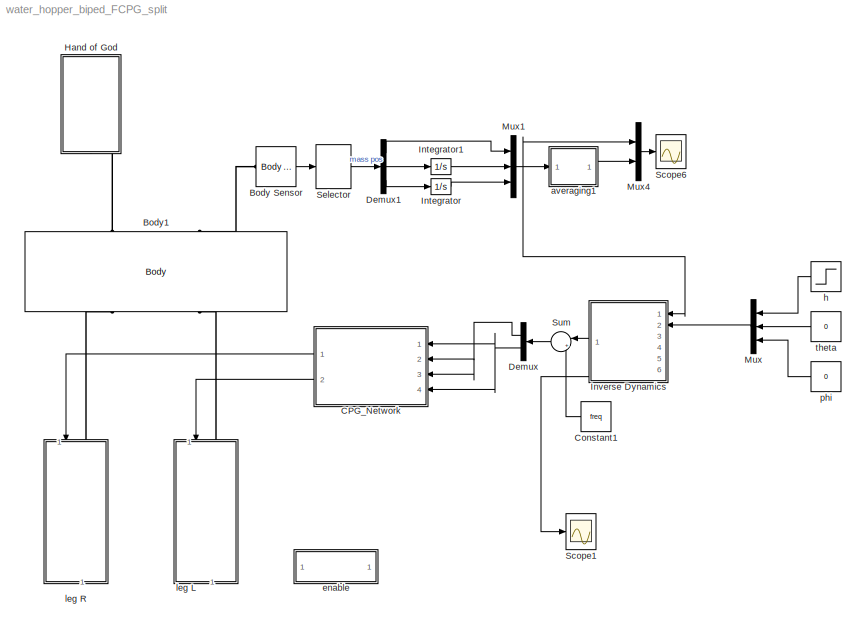
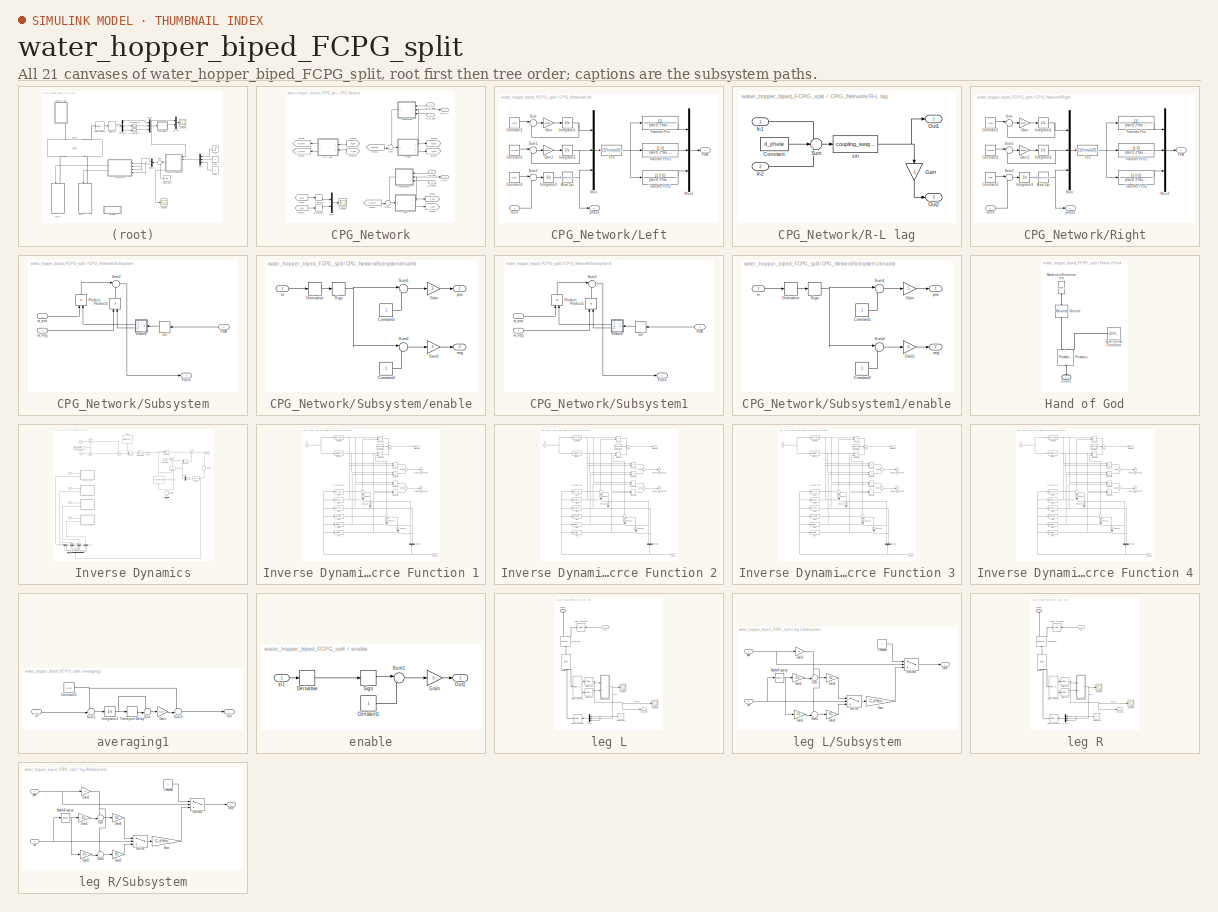
[diagram: thumbnail index - all 21 canvases of the model, root first then tree order]
MODEL water_hopper_biped_FCPG_split
KIND model
BLOCK [Reference] Body Sensor  REF=mblibv1/Sensors & \nActuators/Body Sensor
  Acceleration = off
  AccelerationUnits = m/s^2
  ActiveIO = on
  Angle = on
  AngleUnits = deg
  ArcAcceleration = off
  ArcAccelerationUnits = deg/s^2
  ArcVelocity = on
  ArcVelocityUnits = rad/s
  ClassName = BodySensor
  CoordPosition = on
  CoordPositionUnits = m
  DialogClass = MechanicalSensorBlock
  Muxed = on
  OutputVector = [1]
  PhysicalDomain = Mechanical
  PortType = blob
  Ports = [0, 1, 0, 0, 0, 1]
  Pose = off
  Quaternion = on
  QuaternionDDT = off
  QuaternionDT = off
  QuaternionUnits = off
  ReferenceFrame = Absolute (World)
  SID = 2
  SourceBlock = mblibv1/Sensors & \nActuators/Body Sensor
  SourceType = Body Sensor
  UpdateFromCAD = off
  Velocity = off
  VelocityUnits = m/s
  Width = 3
BLOCK [Reference] Body1  REF=mblibv1/Bodies/Body
  AttachedToCS = CG
  BodyColor = [1 0 0]
  BodyColorSelMode = MACHINE_DEFAULT
  CG = Left$CG$[0 0 0]$WORLD$WORLD$m$[0 0 0]$Euler X-Y-Z$deg$WORLD$false$none
  CGPos = [0 0 0]
  CGRot = [0 0 0]
  CS0Pos = []
  CS0Rot = []
  CS10Pos = []
  CS10Rot = []
  CS11Pos = []
  CS11Rot = []
  CS12Pos = []
  CS12Rot = []
  CS13Pos = []
  CS13Rot = []
  CS14Pos = []
  CS14Rot = []
  CS15Pos = []
  CS15Rot = []
  CS16Pos = []
  CS16Rot = []
  CS17Pos = []
  CS17Rot = []
  CS18Pos = []
  CS18Rot = []
  CS19Pos = []
  CS19Rot = []
  CS1Pos = [0 0 0]
  CS1Rot = [0 0 0]
  CS20Pos = []
  CS20Rot = []
  CS2Pos = [0 0 0]
  CS2Rot = [0 0 0]
  CS3Pos = [0 0 0]
  CS3Rot = [0 0 0]
  CS4Pos = [0 0 0]
  CS4Rot = [0 0 0]
  CS5Pos = []
  CS5Rot = []
  CS6Pos = []
  CS6Rot = []
  CS7Pos = []
  CS7Rot = []
  CS8Pos = []
  CS8Rot = []
  CS9Pos = []
  CS9Rot = []
  ClassName = Body
  Density = 1
  DensityUnits = kg/m^3
  DensityUse = false
  DialogClass = MechanicalBodyBlock
  GraphicsMode = MACHINE_DEFAULT
  Inertia = eye(3)
  InertiaUnits = kg*m^2
  LConnTagsString = CS1|CS2
  Mass = mass
  MassUnits = kg
  Ports = [0, 0, 0, 0, 0, 2, 2]
  RConnTagsString = CS3|CS4
  SID = 398
  Shape = Cylinder
  ShapeDims = [1 1]
  ShapeUnits = m
  ShapeUse = false
  SourceBlock = mblibv1/Bodies/Body
  SourceType = Body
  UpdateFromCAD = off
  WorkingFrames = Left$CS1$[0 0 0]$CG$CG$m$[0 0 0]$Euler X-Y-Z$deg$WORLD$true$none#Left$CS2$[0 0 0]$CG$CG$m$[0 0 0]$Euler X-Y-Z$deg$WORLD$true$none#Right$CS3$[0 0 0]$CG$CG$m$[0 0 0]$Euler X-Y-Z$deg$WORLD$true$none#Right$CS4$[0 0 0]$CG$CG$m$[0 0 0]$Euler X-Y-Z$deg$WORLD$true$none
BLOCK [SubSystem] CPG_Network
  FunctionWithSeparateData = off
  MaskHideContents = off
  MinAlgLoopOccurrences = off
  Opaque = off
  Ports = [4, 2]
  PropExecContextOutsideSubsystem = off
  RTWSystemCode = Auto
  RequestExecContextInheritance = off
  SID = 491
BLOCK [From] CPG_Network/From
  GotoTag = R_out
  SID = 432
BLOCK [From] CPG_Network/From1
  GotoTag = L_out
  SID = 433
BLOCK [From] CPG_Network/From10
  GotoTag = L_phi
  SID = 434
BLOCK [From] CPG_Network/From2
  GotoTag = L_force
  SID = 435
BLOCK [From] CPG_Network/From6
  GotoTag = R_Force
  SID = 436
BLOCK [From] CPG_Network/From9
  GotoTag = R_phi
  SID = 437
BLOCK [Goto] CPG_Network/Goto1
  GotoTag = L_out
  SID = 438
BLOCK [Goto] CPG_Network/Goto2
  GotoTag = L_force
  SID = 439
BLOCK [Goto] CPG_Network/Goto3
  GotoTag = L_phi
  SID = 440
BLOCK [Goto] CPG_Network/Goto6
  GotoTag = R_out
  SID = 441
BLOCK [Goto] CPG_Network/Goto7
  GotoTag = R_phi
  SID = 442
BLOCK [Goto] CPG_Network/Goto8
  GotoTag = R_force
  SID = 443
BLOCK [Outport] CPG_Network/L_PVA
  IconDisplay = Port number
  Port = 2
  SID = 522
BLOCK [Inport] CPG_Network/L_w_neg
  IconDisplay = Port number
  Port = 4
  SID = 684
BLOCK [Inport] CPG_Network/L_w_pos
  IconDisplay = Port number
  Port = 2
  SID = 683
BLOCK [SubSystem] CPG_Network/Left
  FunctionWithSeparateData = off
  MaskHideContents = off
  MinAlgLoopOccurrences = off
  Opaque = off
  Ports = [1, 2]
  PropExecContextOutsideSubsystem = off
  RTWSystemCode = Auto
  RequestExecContextInheritance = off
  SID = 527
BLOCK [Constant] CPG_Network/Left/Constant1
  SID = 529
  Value = Amp
BLOCK [Constant] CPG_Network/Left/Constant2
  SID = 530
  Value = Offset
BLOCK [Constant] CPG_Network/Left/Constant3
  SID = 531
  Value = freq
BLOCK [Fcn] CPG_Network/Left/Fcn
  Expr = u(1)*cos(u(3))+u(2)
  SID = 532
BLOCK [Gain] CPG_Network/Left/Gain
  Gain = alpha
  OutDataTypeStr = Inherit: Inherit via internal rule
  ParamDataTypeStr = Inherit: Inherit via internal rule
  SID = 533
  SaturateOnIntegerOverflow = off
BLOCK [Gain] CPG_Network/Left/Gain1
  Gain = alpha
  OutDataTypeStr = Inherit: Inherit via internal rule
  ParamDataTypeStr = Inherit: Inherit via internal rule
  SID = 534
  SaturateOnIntegerOverflow = off
BLOCK [Integrator] CPG_Network/Left/Integrator1
  Ports = [1, 1]
  SID = 535
BLOCK [Integrator] CPG_Network/Left/Integrator2
  Ports = [1, 1]
  SID = 536
BLOCK [Integrator] CPG_Network/Left/Integrator3
  InitialCondition = init_phi + 0.01*rand
  Ports = [1, 1]
  SID = 537
BLOCK [Fcn] CPG_Network/Left/Mod 2pi
  Expr = atan2(sin(u(1)-pi),cos(u(1)-pi))+pi
  SID = 538
BLOCK [Mux] CPG_Network/Left/Mux
  DisplayOption = bar
  Inputs = 3
  Ports = [3, 1]
  SID = 539
BLOCK [Mux] CPG_Network/Left/Mux2
  DisplayOption = bar
  Inputs = 3
  Ports = [3, 1]
  SID = 540
BLOCK [Outport] CPG_Network/Left/PVA
  IconDisplay = Port number
  SID = 547
BLOCK [Sum] CPG_Network/Left/Sum
  IconShape = round
  InputSameDT = off
  Inputs = |+-
  OutDataTypeStr = Inherit: Inherit via internal rule
  Ports = [2, 1]
  SID = 541
  SaturateOnIntegerOverflow = off
BLOCK [Sum] CPG_Network/Left/Sum1
  IconShape = round
  InputSameDT = off
  Inputs = |+-
  OutDataTypeStr = Inherit: Inherit via internal rule
  Ports = [2, 1]
  SID = 542
  SaturateOnIntegerOverflow = off
BLOCK [Sum] CPG_Network/Left/Sum2
  IconShape = round
  InputSameDT = off
  Inputs = |++
  OutDataTypeStr = Inherit: Inherit via internal rule
  Ports = [2, 1]
  SID = 543
  SaturateOnIntegerOverflow = off
BLOCK [TransferFcn] CPG_Network/Left/Transfer Fcn
  Denominator = [tau^2 2*tau 1]
  SID = 544
BLOCK [TransferFcn] CPG_Network/Left/Transfer Fcn1
  Denominator = [tau^2 2*tau 1]
  Numerator = [1 0]
  SID = 545
BLOCK [TransferFcn] CPG_Network/Left/Transfer Fcn2
  Denominator = [tau^2 2*tau 1]
  Numerator = [1 0 0]
  SID = 546
BLOCK [Inport] CPG_Network/Left/force
  IconDisplay = Port number
  SID = 528
BLOCK [Outport] CPG_Network/Left/phase
  IconDisplay = Port number
  Port = 2
  SID = 548
BLOCK [Mux] CPG_Network/Mux
  DisplayOption = bar
  Inputs = 2
  Ports = [2, 1]
  SID = 444
BLOCK [SubSystem] CPG_Network/R-L lag
  FunctionWithSeparateData = off
  MaskHideContents = off
  MinAlgLoopOccurrences = off
  Opaque = off
  Ports = [2, 2]
  PropExecContextOutsideSubsystem = off
  RTWSystemCode = Auto
  RequestExecContextInheritance = off
  SID = 445
BLOCK [Constant] CPG_Network/R-L lag/Constant
  SID = 448
  Value = d_phase
BLOCK [Gain] CPG_Network/R-L lag/Gain
  Gain = -1
  OutDataTypeStr = Inherit: Inherit via internal rule
  ParamDataTypeStr = Inherit: Inherit via internal rule
  SID = 449
  SaturateOnIntegerOverflow = off
BLOCK [Inport] CPG_Network/R-L lag/In1
  IconDisplay = Port number
  SID = 446
BLOCK [Inport] CPG_Network/R-L lag/In2
  IconDisplay = Port number
  Port = 2
  SID = 447
BLOCK [Outport] CPG_Network/R-L lag/Out1
  IconDisplay = Port number
  SID = 452
BLOCK [Outport] CPG_Network/R-L lag/Out2
  IconDisplay = Port number
  Port = 2
  SID = 453
BLOCK [Sum] CPG_Network/R-L lag/Sum
  IconShape = round
  InputSameDT = off
  Inputs = --+
  OutDataTypeStr = Inherit: Inherit via internal rule
  Ports = [3, 1]
  SID = 450
  SaturateOnIntegerOverflow = off
BLOCK [Fcn] CPG_Network/R-L lag/sin
  Expr = coupling_weight*sin(u(1))
  SID = 451
BLOCK [Outport] CPG_Network/R_PVA
  IconDisplay = Port number
  SID = 521
BLOCK [Inport] CPG_Network/R_w_neg
  IconDisplay = Port number
  SID = 669
BLOCK [Inport] CPG_Network/R_w_pos
  IconDisplay = Port number
  Port = 3
  SID = 668
BLOCK [SubSystem] CPG_Network/Right
  FunctionWithSeparateData = off
  MaskHideContents = off
  MinAlgLoopOccurrences = off
  Opaque = off
  Ports = [1, 2]
  PropExecContextOutsideSubsystem = off
  RTWSystemCode = Auto
  RequestExecContextInheritance = off
  SID = 454
BLOCK [Constant] CPG_Network/Right/Constant1
  SID = 457
  Value = Amp
BLOCK [Constant] CPG_Network/Right/Constant2
  SID = 458
  Value = Offset
BLOCK [Constant] CPG_Network/Right/Constant3
  SID = 498
  Value = freq
BLOCK [Fcn] CPG_Network/Right/Fcn
  Expr = u(1)*cos(u(3))+u(2)
  SID = 459
BLOCK [Gain] CPG_Network/Right/Gain
  Gain = alpha
  OutDataTypeStr = Inherit: Inherit via internal rule
  ParamDataTypeStr = Inherit: Inherit via internal rule
  SID = 460
  SaturateOnIntegerOverflow = off
BLOCK [Gain] CPG_Network/Right/Gain1
  Gain = alpha
  OutDataTypeStr = Inherit: Inherit via internal rule
  ParamDataTypeStr = Inherit: Inherit via internal rule
  SID = 461
  SaturateOnIntegerOverflow = off
BLOCK [Integrator] CPG_Network/Right/Integrator1
  Ports = [1, 1]
  SID = 462
BLOCK [Integrator] CPG_Network/Right/Integrator2
  Ports = [1, 1]
  SID = 463
BLOCK [Integrator] CPG_Network/Right/Integrator3
  InitialCondition = init_phi + 0.01*rand
  Ports = [1, 1]
  SID = 464
BLOCK [Fcn] CPG_Network/Right/Mod 2pi
  Expr = atan2(sin(u(1)-pi),cos(u(1)-pi))+pi
  SID = 465
BLOCK [Mux] CPG_Network/Right/Mux
  DisplayOption = bar
  Inputs = 3
  Ports = [3, 1]
  SID = 466
BLOCK [Mux] CPG_Network/Right/Mux2
  DisplayOption = bar
  Inputs = 3
  Ports = [3, 1]
  SID = 492
BLOCK [Outport] CPG_Network/Right/PVA
  IconDisplay = Port number
  SID = 497
BLOCK [Sum] CPG_Network/Right/Sum
  IconShape = round
  InputSameDT = off
  Inputs = |+-
  OutDataTypeStr = Inherit: Inherit via internal rule
  Ports = [2, 1]
  SID = 467
  SaturateOnIntegerOverflow = off
BLOCK [Sum] CPG_Network/Right/Sum1
  IconShape = round
  InputSameDT = off
  Inputs = |+-
  OutDataTypeStr = Inherit: Inherit via internal rule
  Ports = [2, 1]
  SID = 468
  SaturateOnIntegerOverflow = off
BLOCK [Sum] CPG_Network/Right/Sum2
  IconShape = round
  InputSameDT = off
  Inputs = |++
  OutDataTypeStr = Inherit: Inherit via internal rule
  Ports = [2, 1]
  SID = 469
  SaturateOnIntegerOverflow = off
BLOCK [TransferFcn] CPG_Network/Right/Transfer Fcn
  Denominator = [tau^2 2*tau 1]
  SID = 494
BLOCK [TransferFcn] CPG_Network/Right/Transfer Fcn1
  Denominator = [tau^2 2*tau 1]
  Numerator = [1 0]
  SID = 495
BLOCK [TransferFcn] CPG_Network/Right/Transfer Fcn2
  Denominator = [tau^2 2*tau 1]
  Numerator = [1 0 0]
  SID = 496
BLOCK [Inport] CPG_Network/Right/force
  IconDisplay = Port number
  SID = 455
BLOCK [Outport] CPG_Network/Right/phase
  IconDisplay = Port number
  Port = 2
  SID = 471
BLOCK [Scope] CPG_Network/Scope3
  DataFormat = StructureWithTime
  Floating = off
  LimitDataPoints = off
  NumInputPorts = 1
  Ports = [1]
  SID = 490
  SampleTime = 0
  SaveName = Output
  SaveToWorkspace = on
  ShowLegends = off
  TimeRange = 3
  YMax = 0.025
  YMin = -0.025
BLOCK [Selector] CPG_Network/Selector
  IndexOptions = Index vector (dialog)
  Indices = [1]
  InputPortWidth = 3
  OutputSizes = 1
  Ports = [1, 1]
  SID = 549
BLOCK [Selector] CPG_Network/Selector1
  IndexOptions = Index vector (dialog)
  Indices = [1]
  InputPortWidth = 3
  OutputSizes = 1
  Ports = [1, 1]
  SID = 550
BLOCK [SubSystem] CPG_Network/Subsystem
  FunctionWithSeparateData = off
  MaskHideContents = off
  MinAlgLoopOccurrences = off
  Opaque = off
  Ports = [3, 1]
  PropExecContextOutsideSubsystem = off
  RTWSystemCode = Auto
  RequestExecContextInheritance = off
  SID = 678
BLOCK [Outport] CPG_Network/Subsystem/Force
  IconDisplay = Port number
  SID = 682
BLOCK [Inport] CPG_Network/Subsystem/PVA
  IconDisplay = Port number
  Port = 2
  SID = 680
BLOCK [Product] CPG_Network/Subsystem/Product
  InputSameDT = off
  OutDataTypeStr = Inherit: Inherit via internal rule
  Ports = [2, 1]
  SID = 674
  SaturateOnIntegerOverflow = off
BLOCK [Product] CPG_Network/Subsystem/Product1
  InputSameDT = off
  OutDataTypeStr = Inherit: Inherit via internal rule
  Ports = [2, 1]
  SID = 677
  SaturateOnIntegerOverflow = off
BLOCK [Sum] CPG_Network/Subsystem/Sum2
  IconShape = round
  InputSameDT = off
  Inputs = |++
  OutDataTypeStr = Inherit: Inherit via internal rule
  Ports = [2, 1]
  SID = 676
  SaturateOnIntegerOverflow = off
BLOCK [SubSystem] CPG_Network/Subsystem/enable
  FunctionWithSeparateData = off
  MaskHideContents = off
  MinAlgLoopOccurrences = off
  Opaque = off
  Ports = [1, 2]
  PropExecContextOutsideSubsystem = off
  RTWSystemCode = Auto
  RequestExecContextInheritance = off
  SID = 655
BLOCK [Constant] CPG_Network/Subsystem/enable/Constant1
  SID = 657
BLOCK [Constant] CPG_Network/Subsystem/enable/Constant2
  SID = 664
BLOCK [Derivative] CPG_Network/Subsystem/enable/Derivative
  SID = 658
BLOCK [Gain] CPG_Network/Subsystem/enable/Gain
  Gain = .5
  OutDataTypeStr = Inherit: Inherit via internal rule
  ParamDataTypeStr = Inherit: Inherit via internal rule
  SID = 659
  SaturateOnIntegerOverflow = off
BLOCK [Gain] CPG_Network/Subsystem/enable/Gain1
  Gain = .5
  OutDataTypeStr = Inherit: Inherit via internal rule
  ParamDataTypeStr = Inherit: Inherit via internal rule
  SID = 665
  SaturateOnIntegerOverflow = off
BLOCK [Signum] CPG_Network/Subsystem/enable/Sign
  SID = 660
BLOCK [Sum] CPG_Network/Subsystem/enable/Sum1
  IconShape = round
  InputSameDT = off
  Inputs = |++
  OutDataTypeStr = Inherit: Inherit via internal rule
  Ports = [2, 1]
  SID = 661
  SaturateOnIntegerOverflow = off
BLOCK [Sum] CPG_Network/Subsystem/enable/Sum2
  IconShape = round
  InputSameDT = off
  Inputs = |-+
  OutDataTypeStr = Inherit: Inherit via internal rule
  Ports = [2, 1]
  SID = 666
  SaturateOnIntegerOverflow = off
BLOCK [Inport] CPG_Network/Subsystem/enable/in
  IconDisplay = Port number
  SID = 656
BLOCK [Outport] CPG_Network/Subsystem/enable/neg
  IconDisplay = Port number
  Port = 2
  SID = 667
BLOCK [Outport] CPG_Network/Subsystem/enable/pos
  IconDisplay = Port number
  SID = 662
BLOCK [Selector] CPG_Network/Subsystem/sel
  IndexOptions = Index vector (dialog)
  Indices = [2]
  InputPortWidth = 3
  OutputSizes = 1
  Ports = [1, 1]
  SID = 663
BLOCK [Inport] CPG_Network/Subsystem/w_neg
  IconDisplay = Port number
  Port = 3
  SID = 681
BLOCK [Inport] CPG_Network/Subsystem/w_pos
  IconDisplay = Port number
  SID = 679
BLOCK [SubSystem] CPG_Network/Subsystem1
  FunctionWithSeparateData = off
  MaskHideContents = off
  MinAlgLoopOccurrences = off
  Opaque = off
  Ports = [3, 1]
  PropExecContextOutsideSubsystem = off
  RTWSystemCode = Auto
  RequestExecContextInheritance = off
  SID = 685
BLOCK [Outport] CPG_Network/Subsystem1/Force
  IconDisplay = Port number
  SID = 705
BLOCK [Inport] CPG_Network/Subsystem1/PVA
  IconDisplay = Port number
  Port = 2
  SID = 687
BLOCK [Product] CPG_Network/Subsystem1/Product
  InputSameDT = off
  OutDataTypeStr = Inherit: Inherit via internal rule
  Ports = [2, 1]
  SID = 689
  SaturateOnIntegerOverflow = off
BLOCK [Product] CPG_Network/Subsystem1/Product1
  InputSameDT = off
  OutDataTypeStr = Inherit: Inherit via internal rule
  Ports = [2, 1]
  SID = 690
  SaturateOnIntegerOverflow = off
BLOCK [Sum] CPG_Network/Subsystem1/Sum2
  IconShape = round
  InputSameDT = off
  Inputs = |++
  OutDataTypeStr = Inherit: Inherit via internal rule
  Ports = [2, 1]
  SID = 691
  SaturateOnIntegerOverflow = off
BLOCK [SubSystem] CPG_Network/Subsystem1/enable
  FunctionWithSeparateData = off
  MaskHideContents = off
  MinAlgLoopOccurrences = off
  Opaque = off
  Ports = [1, 2]
  PropExecContextOutsideSubsystem = off
  RTWSystemCode = Auto
  RequestExecContextInheritance = off
  SID = 692
BLOCK [Constant] CPG_Network/Subsystem1/enable/Constant1
  SID = 694
BLOCK [Constant] CPG_Network/Subsystem1/enable/Constant2
  SID = 695
BLOCK [Derivative] CPG_Network/Subsystem1/enable/Derivative
  SID = 696
BLOCK [Gain] CPG_Network/Subsystem1/enable/Gain
  Gain = .5
  OutDataTypeStr = Inherit: Inherit via internal rule
  ParamDataTypeStr = Inherit: Inherit via internal rule
  SID = 697
  SaturateOnIntegerOverflow = off
BLOCK [Gain] CPG_Network/Subsystem1/enable/Gain1
  Gain = .5
  OutDataTypeStr = Inherit: Inherit via internal rule
  ParamDataTypeStr = Inherit: Inherit via internal rule
  SID = 698
  SaturateOnIntegerOverflow = off
BLOCK [Signum] CPG_Network/Subsystem1/enable/Sign
  SID = 699
BLOCK [Sum] CPG_Network/Subsystem1/enable/Sum1
  IconShape = round
  InputSameDT = off
  Inputs = |++
  OutDataTypeStr = Inherit: Inherit via internal rule
  Ports = [2, 1]
  SID = 700
  SaturateOnIntegerOverflow = off
BLOCK [Sum] CPG_Network/Subsystem1/enable/Sum2
  IconShape = round
  InputSameDT = off
  Inputs = |-+
  OutDataTypeStr = Inherit: Inherit via internal rule
  Ports = [2, 1]
  SID = 701
  SaturateOnIntegerOverflow = off
BLOCK [Inport] CPG_Network/Subsystem1/enable/in
  IconDisplay = Port number
  SID = 693
BLOCK [Outport] CPG_Network/Subsystem1/enable/neg
  IconDisplay = Port number
  Port = 2
  SID = 703
BLOCK [Outport] CPG_Network/Subsystem1/enable/pos
  IconDisplay = Port number
  SID = 702
BLOCK [Selector] CPG_Network/Subsystem1/sel
  IndexOptions = Index vector (dialog)
  Indices = [2]
  InputPortWidth = 3
  OutputSizes = 1
  Ports = [1, 1]
  SID = 704
BLOCK [Inport] CPG_Network/Subsystem1/w_neg
  IconDisplay = Port number
  Port = 3
  SID = 688
BLOCK [Inport] CPG_Network/Subsystem1/w_pos
  IconDisplay = Port number
  SID = 686
BLOCK [Sum] CPG_Network/Sum
  IconShape = round
  InputSameDT = off
  Inputs = ++|
  OutDataTypeStr = Inherit: Inherit via internal rule
  Ports = [2, 1]
  SID = 523
  SaturateOnIntegerOverflow = off
BLOCK [Sum] CPG_Network/Sum1
  IconShape = round
  InputSameDT = off
  Inputs = ++|
  OutDataTypeStr = Inherit: Inherit via internal rule
  Ports = [2, 1]
  SID = 525
  SaturateOnIntegerOverflow = off
BLOCK [Constant] Constant1
  SID = 757
  Value = freq
BLOCK [Demux] Demux
  DisplayOption = bar
  Outputs = 2
  Ports = [1, 2]
  SID = 755
BLOCK [Demux] Demux1
  DisplayOption = bar
  Outputs = 3
  Ports = [1, 3]
  SID = 885
BLOCK [SubSystem] Hand of God
  FunctionWithSeparateData = off
  MaskHideContents = off
  MinAlgLoopOccurrences = off
  Opaque = off
  Ports = [0, 0, 0, 0, 0, 1]
  PropExecContextOutsideSubsystem = off
  RTWSystemCode = Auto
  RequestExecContextInheritance = off
  SID = 399
BLOCK [PMIOPort] Hand of God/Conn1
  Port = 1
  SID = 400
  Side = Left
BLOCK [Reference] Hand of God/Ground  REF=mblibv1/Bodies/Ground
  ClassName = Ground
  CoordPosition = [0 0 0]
  CoordPositionUnits = m
  DialogClass = GroundBlock
  LeftPortType = env
  MachineId = [0 0]
  PhysicalDomain = Mechanical
  Ports = [0, 0, 0, 0, 0, 1, 1]
  RightPortType = workingframe
  SID = 3
  ShowEnvPort = on
  SourceBlock = mblibv1/Bodies/Ground
  SourceType = Ground
  StateVectorMgrId = -1
  UpdateFromCAD = off
  UserData = DataTag0
  UserDataPersistent = on
BLOCK [Reference] Hand of God/Joint Initial Condition  REF=mblibv1/Sensors & \nActuators/Joint Initial Condition
  ClassName = InitialCondition
  DialogClass = InitialConditionBlock
  InitialConditions = P1$true$y_0$m$deg$0$m/s$deg/s#P2$false$0$m$deg$0$m/s$deg/s#P3$false$0$m$deg$0$m/s$deg/s#R1$false$0$m$deg$0$m/s$deg/s#R2$false$0$m$deg$0$m/s$deg/s#R3$false$0$m$deg$0$m/s$deg/s#S$false$0$m$deg$0$m/s$deg/s
  LeftPortType = blob
  P1PIC = y_0
  P1VIC = 0
  P2PIC = 0
  P2VIC = 0
  P3PIC = 0
  P3VIC = 0
  PhysicalDomain = mechanical
  Ports = [0, 0, 0, 0, 0, 0, 1]
  R1PIC = 0
  R1VIC = 0
  R2PIC = 0
  R2VIC = 0
  R3PIC = 0
  R3VIC = 0
  RightPortType = blob
  SID = 98
  SPIC = 0
  SVIC = 0
  SourceBlock = mblibv1/Sensors & \nActuators/Joint Initial Condition
  SourceType = Joint Initial Condition
  UpdateFromCAD = off
BLOCK [Reference] Hand of God/Machine\nEnvironment  REF=mblibv1/Bodies/Machine\nEnvironment
  AnalysisType = Forward dynamics
  AngularAssemblyTolerance = 1e-3
  AngularAssemblyToleranceUnits = rad
  BodyColorSelMode = Use model default
  BodyVisualizationType = Use model default body geometries
  ClassName = Environment
  ConstraintAbsTolerance = 1e-4
  ConstraintRelTolerance = 1e-4
  ConstraintSolverType = Stabilizing
  DefaultBodyColor = [1 0 0]
  DialogTemplateClass = MECH.MachineEnvironment
  Dimensionality = Auto-detect
  Gravity = [0 -g 0]
  GravityAsSignal = off
  GravityUnits = m/s^2
  LinearAssemblyTolerance = 1e-3
  LinearAssemblyToleranceUnits = m
  PerturbationSize = 1e-5
  PhysicalDomain = Mechanical
  PortType = env
  Ports = [0, 0, 0, 0, 0, 0, 1]
  RedundancyAnalysisTolerance = 1e-14
  RedundancyAnalysisToleranceType = Automatically select tolerance
  SID = 25
  SourceBlock = mblibv1/Bodies/Machine\nEnvironment
  SourceType = Machine Environment
  StatePerturbationType = Fixed
  SyncWhenCopied = off
  UseRobustSingularityHandling = off
  VisualizeMachine = on
BLOCK [Reference] Hand of God/Prismatic  REF=mblibv1/Joints/Prismatic
  ClassName = Joint
  CutJoint = off
  DialogClass = JointBlock
  LConnTagsString = __newl0|SA1
  MarkAsCut = off
  NumSAPorts = 1
  P1Axis = [0 1 0]
  Ports = [0, 0, 0, 0, 0, 2, 1]
  PrimitiveProps = P1$World$[0 1 0]$prismatic
  Primitives = prismatic
  RConnTagsString = __newr0
  SID = 27
  SourceBlock = mblibv1/Joints/Prismatic
  SourceType = Prismatic
  UpdateFromCAD = off
BLOCK [Integrator] Integrator
  Ports = [1, 1]
  SID = 886
BLOCK [Integrator] Integrator1
  Ports = [1, 1]
  SID = 887
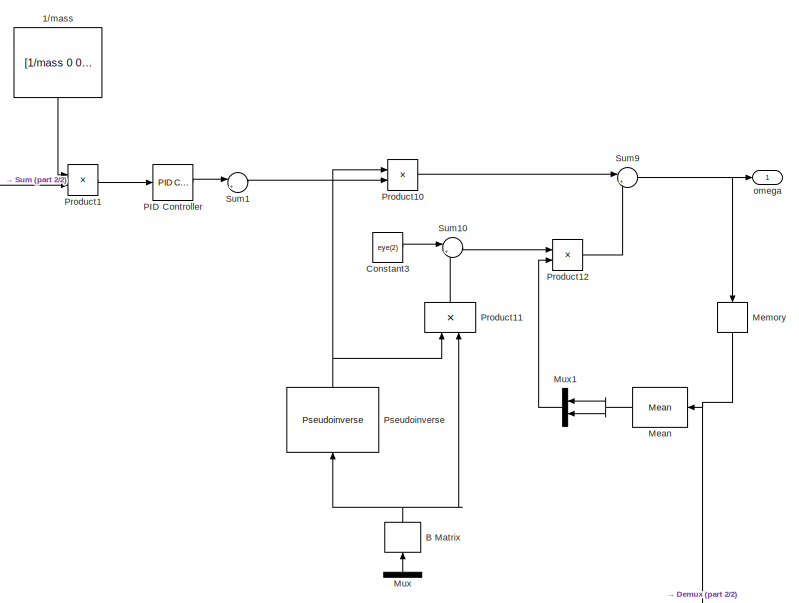
[diagram: Inverse Dynamics - part 1/2, top right region]
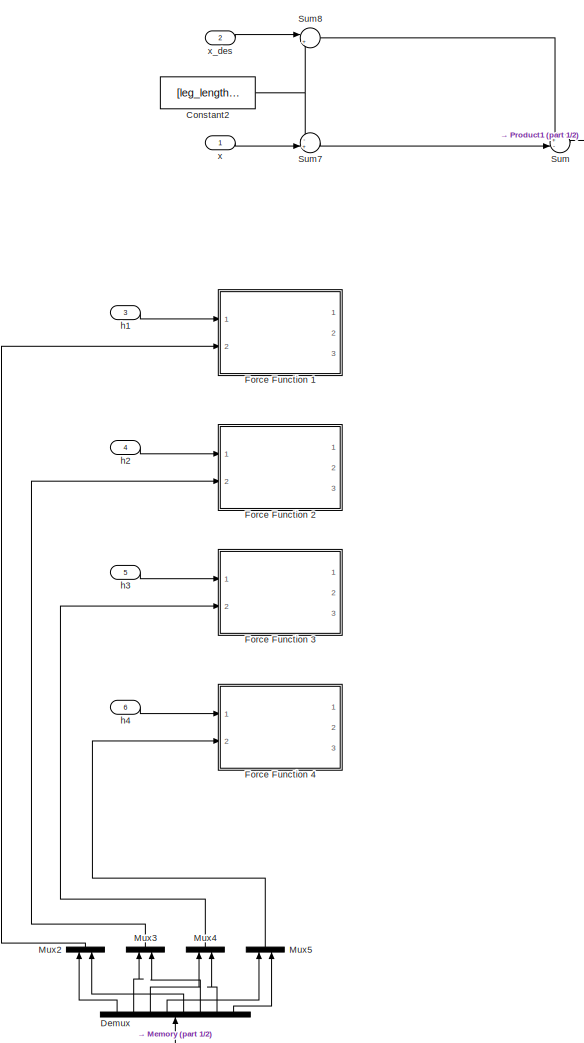
[diagram: Inverse Dynamics - part 2/2, left side, full height]
BLOCK [SubSystem] Inverse Dynamics
  FunctionWithSeparateData = off
  MaskHideContents = off
  MinAlgLoopOccurrences = off
  Opaque = off
  Ports = [6, 1]
  PropExecContextOutsideSubsystem = off
  RTWSystemCode = Auto
  RequestExecContextInheritance = off
  SID = 707
BLOCK [Constant] Inverse Dynamics/1//mass
  SID = 889
  Value = [1/mass 0 0 ; 0 1 0 ; 0 0 1]
BLOCK [Reshape] Inverse Dynamics/B Matrix
  OutputDimensionality = Customize
  OutputDimensions = [1,2]
  Ports = [1, 1]
  SID = 710
BLOCK [Constant] Inverse Dynamics/Constant2
  SID = 712
  Value = [leg_length 0 0]'
BLOCK [Constant] Inverse Dynamics/Constant3
  SID = 713
  Value = eye(2)
BLOCK [Demux] Inverse Dynamics/Demux
  DisplayOption = bar
  Outputs = 8
  Ports = [1, 8]
  SID = 881
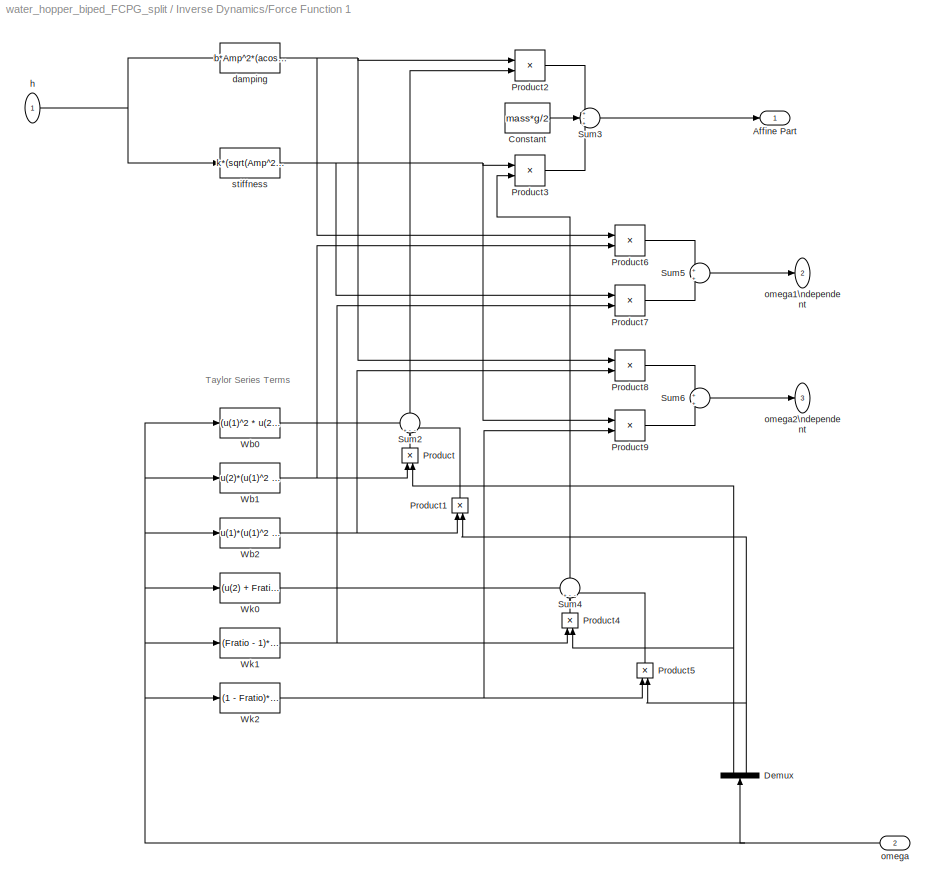
BLOCK [SubSystem] Inverse Dynamics/Force Function 1
  FunctionWithSeparateData = off
  MaskHideContents = off
  MinAlgLoopOccurrences = off
  Opaque = off
  Ports = [2, 3]
  PropExecContextOutsideSubsystem = off
  RTWSystemCode = Auto
  RequestExecContextInheritance = off
  SID = 775
BLOCK [Outport] Inverse Dynamics/Force Function 1/Affine Part
  IconDisplay = Port number
  SID = 780
BLOCK [Constant] Inverse Dynamics/Force Function 1/Constant
  SID = 711
  Value = mass*g/2
BLOCK [Demux] Inverse Dynamics/Force Function 1/Demux
  DisplayOption = bar
  Outputs = 2
  Ports = [1, 2]
  SID = 783
BLOCK [Product] Inverse Dynamics/Force Function 1/Product
  InputSameDT = off
  OutDataTypeStr = Inherit: Inherit via internal rule
  Ports = [2, 1]
  SID = 719
  SaturateOnIntegerOverflow = off
BLOCK [Product] Inverse Dynamics/Force Function 1/Product1
  InputSameDT = off
  OutDataTypeStr = Inherit: Inherit via internal rule
  Ports = [2, 1]
  SID = 720
  SaturateOnIntegerOverflow = off
BLOCK [Product] Inverse Dynamics/Force Function 1/Product2
  InputSameDT = off
  OutDataTypeStr = Inherit: Inherit via internal rule
  Ports = [2, 1]
  SID = 724
  SaturateOnIntegerOverflow = off
BLOCK [Product] Inverse Dynamics/Force Function 1/Product3
  InputSameDT = off
  OutDataTypeStr = Inherit: Inherit via internal rule
  Ports = [2, 1]
  SID = 725
  SaturateOnIntegerOverflow = off
BLOCK [Product] Inverse Dynamics/Force Function 1/Product4
  InputSameDT = off
  OutDataTypeStr = Inherit: Inherit via internal rule
  Ports = [2, 1]
  SID = 726
  SaturateOnIntegerOverflow = off
BLOCK [Product] Inverse Dynamics/Force Function 1/Product5
  InputSameDT = off
  OutDataTypeStr = Inherit: Inherit via internal rule
  Ports = [2, 1]
  SID = 727
  SaturateOnIntegerOverflow = off
BLOCK [Product] Inverse Dynamics/Force Function 1/Product6
  InputSameDT = off
  OutDataTypeStr = Inherit: Inherit via internal rule
  Ports = [2, 1]
  SID = 728
  SaturateOnIntegerOverflow = off
BLOCK [Product] Inverse Dynamics/Force Function 1/Product7
  InputSameDT = off
  OutDataTypeStr = Inherit: Inherit via internal rule
  Ports = [2, 1]
  SID = 729
  SaturateOnIntegerOverflow = off
BLOCK [Product] Inverse Dynamics/Force Function 1/Product8
  InputSameDT = off
  OutDataTypeStr = Inherit: Inherit via internal rule
  Ports = [2, 1]
  SID = 730
  SaturateOnIntegerOverflow = off
BLOCK [Product] Inverse Dynamics/Force Function 1/Product9
  InputSameDT = off
  OutDataTypeStr = Inherit: Inherit via internal rule
  Ports = [2, 1]
  SID = 731
  SaturateOnIntegerOverflow = off
BLOCK [Sum] Inverse Dynamics/Force Function 1/Sum2
  IconShape = round
  InputSameDT = off
  Inputs = +--
  OutDataTypeStr = Inherit: Inherit via internal rule
  Ports = [3, 1]
  SID = 736
  SaturateOnIntegerOverflow = off
BLOCK [Sum] Inverse Dynamics/Force Function 1/Sum3
  IconShape = round
  InputSameDT = off
  Inputs = +-+
  OutDataTypeStr = Inherit: Inherit via internal rule
  Ports = [3, 1]
  SID = 737
  SaturateOnIntegerOverflow = off
BLOCK [Sum] Inverse Dynamics/Force Function 1/Sum4
  IconShape = round
  InputSameDT = off
  Inputs = +--
  OutDataTypeStr = Inherit: Inherit via internal rule
  Ports = [3, 1]
  SID = 738
  SaturateOnIntegerOverflow = off
BLOCK [Sum] Inverse Dynamics/Force Function 1/Sum5
  IconShape = round
  InputSameDT = off
  Inputs = +|+
  OutDataTypeStr = Inherit: Inherit via internal rule
  Ports = [2, 1]
  SID = 739
  SaturateOnIntegerOverflow = off
BLOCK [Sum] Inverse Dynamics/Force Function 1/Sum6
  IconShape = round
  InputSameDT = off
  Inputs = +|+
  OutDataTypeStr = Inherit: Inherit via internal rule
  Ports = [2, 1]
  SID = 740
  SaturateOnIntegerOverflow = off
BLOCK [Fcn] Inverse Dynamics/Force Function 1/Wb0
  Expr = (u(1)^2 * u(2) + Fratio*u(1)*u(2)^2)/(u(1) + u(2))
  SID = 744
BLOCK [Fcn] Inverse Dynamics/Force Function 1/Wb1
  Expr = u(2)*(u(1)^2 +2*u(1)*u(2) + Fratio*u(2)^2)/((u(1) + u(2))^2)
  SID = 745
BLOCK [Fcn] Inverse Dynamics/Force Function 1/Wb2
  Expr = u(1)*(u(1)^2 +2*Fratio*u(1)*u(2) + Fratio*u(2)^2)/((u(1) + u(2))^2)
  SID = 746
BLOCK [Fcn] Inverse Dynamics/Force Function 1/Wk0
  Expr = (u(2) + Fratio*u(1))/(u(1) + u(2))
  SID = 747
BLOCK [Fcn] Inverse Dynamics/Force Function 1/Wk1
  Expr = (Fratio - 1)*u(2)/((u(1) + u(2))^2)
  SID = 748
BLOCK [Fcn] Inverse Dynamics/Force Function 1/Wk2
  Expr = (1 - Fratio)*u(1)/((u(1) + u(2))^2)
  SID = 749
BLOCK [Fcn] Inverse Dynamics/Force Function 1/damping
  Expr = b*Amp^2*(acos(u/Amp) - u*sqrt(Amp^2 - u^2)/Amp^2)/(2*pi)
  SID = 750
BLOCK [Inport] Inverse Dynamics/Force Function 1/h
  IconDisplay = Port number
  SID = 776
BLOCK [Inport] Inverse Dynamics/Force Function 1/omega
  IconDisplay = Port number
  Port = 2
  SID = 779
BLOCK [Outport] Inverse Dynamics/Force Function 1/omega1\ndependent
  IconDisplay = Port number
  Port = 2
  SID = 781
BLOCK [Outport] Inverse Dynamics/Force Function 1/omega2\ndependent
  IconDisplay = Port number
  Port = 3
  SID = 782
BLOCK [Fcn] Inverse Dynamics/Force Function 1/stiffness
  Expr = k*(sqrt(Amp^2 - u^2) - u*acos(u/Amp))/pi
  SID = 751
BLOCK [SubSystem] Inverse Dynamics/Force Function 2
  FunctionWithSeparateData = off
  MaskHideContents = off
  MinAlgLoopOccurrences = off
  Opaque = off
  Ports = [2, 3]
  PropExecContextOutsideSubsystem = off
  RTWSystemCode = Auto
  RequestExecContextInheritance = off
  SID = 785
BLOCK [Outport] Inverse Dynamics/Force Function 2/Affine Part
  IconDisplay = Port number
  SID = 813
BLOCK [Constant] Inverse Dynamics/Force Function 2/Constant
  SID = 788
  Value = mass*g/2
BLOCK [Demux] Inverse Dynamics/Force Function 2/Demux
  DisplayOption = bar
  Outputs = 2
  Ports = [1, 2]
  SID = 789
BLOCK [Product] Inverse Dynamics/Force Function 2/Product
  InputSameDT = off
  OutDataTypeStr = Inherit: Inherit via internal rule
  Ports = [2, 1]
  SID = 790
  SaturateOnIntegerOverflow = off
BLOCK [Product] Inverse Dynamics/Force Function 2/Product1
  InputSameDT = off
  OutDataTypeStr = Inherit: Inherit via internal rule
  Ports = [2, 1]
  SID = 791
  SaturateOnIntegerOverflow = off
BLOCK [Product] Inverse Dynamics/Force Function 2/Product2
  InputSameDT = off
  OutDataTypeStr = Inherit: Inherit via internal rule
  Ports = [2, 1]
  SID = 792
  SaturateOnIntegerOverflow = off
BLOCK [Product] Inverse Dynamics/Force Function 2/Product3
  InputSameDT = off
  OutDataTypeStr = Inherit: Inherit via internal rule
  Ports = [2, 1]
  SID = 793
  SaturateOnIntegerOverflow = off
BLOCK [Product] Inverse Dynamics/Force Function 2/Product4
  InputSameDT = off
  OutDataTypeStr = Inherit: Inherit via internal rule
  Ports = [2, 1]
  SID = 794
  SaturateOnIntegerOverflow = off
BLOCK [Product] Inverse Dynamics/Force Function 2/Product5
  InputSameDT = off
  OutDataTypeStr = Inherit: Inherit via internal rule
  Ports = [2, 1]
  SID = 795
  SaturateOnIntegerOverflow = off
BLOCK [Product] Inverse Dynamics/Force Function 2/Product6
  InputSameDT = off
  OutDataTypeStr = Inherit: Inherit via internal rule
  Ports = [2, 1]
  SID = 796
  SaturateOnIntegerOverflow = off
BLOCK [Product] Inverse Dynamics/Force Function 2/Product7
  InputSameDT = off
  OutDataTypeStr = Inherit: Inherit via internal rule
  Ports = [2, 1]
  SID = 797
  SaturateOnIntegerOverflow = off
BLOCK [Product] Inverse Dynamics/Force Function 2/Product8
  InputSameDT = off
  OutDataTypeStr = Inherit: Inherit via internal rule
  Ports = [2, 1]
  SID = 798
  SaturateOnIntegerOverflow = off
BLOCK [Product] Inverse Dynamics/Force Function 2/Product9
  InputSameDT = off
  OutDataTypeStr = Inherit: Inherit via internal rule
  Ports = [2, 1]
  SID = 799
  SaturateOnIntegerOverflow = off
BLOCK [Sum] Inverse Dynamics/Force Function 2/Sum2
  IconShape = round
  InputSameDT = off
  Inputs = +--
  OutDataTypeStr = Inherit: Inherit via internal rule
  Ports = [3, 1]
  SID = 800
  SaturateOnIntegerOverflow = off
BLOCK [Sum] Inverse Dynamics/Force Function 2/Sum3
  IconShape = round
  InputSameDT = off
  Inputs = +-+
  OutDataTypeStr = Inherit: Inherit via internal rule
  Ports = [3, 1]
  SID = 801
  SaturateOnIntegerOverflow = off
BLOCK [Sum] Inverse Dynamics/Force Function 2/Sum4
  IconShape = round
  InputSameDT = off
  Inputs = +--
  OutDataTypeStr = Inherit: Inherit via internal rule
  Ports = [3, 1]
  SID = 802
  SaturateOnIntegerOverflow = off
BLOCK [Sum] Inverse Dynamics/Force Function 2/Sum5
  IconShape = round
  InputSameDT = off
  Inputs = +|+
  OutDataTypeStr = Inherit: Inherit via internal rule
  Ports = [2, 1]
  SID = 803
  SaturateOnIntegerOverflow = off
BLOCK [Sum] Inverse Dynamics/Force Function 2/Sum6
  IconShape = round
  InputSameDT = off
  Inputs = +|+
  OutDataTypeStr = Inherit: Inherit via internal rule
  Ports = [2, 1]
  SID = 804
  SaturateOnIntegerOverflow = off
BLOCK [Fcn] Inverse Dynamics/Force Function 2/Wb0
  Expr = (u(1)^2 * u(2) + Fratio*u(1)*u(2)^2)/(u(1) + u(2))
  SID = 805
BLOCK [Fcn] Inverse Dynamics/Force Function 2/Wb1
  Expr = u(2)*(u(1)^2 +2*u(1)*u(2) + Fratio*u(2)^2)/((u(1) + u(2))^2)
  SID = 806
BLOCK [Fcn] Inverse Dynamics/Force Function 2/Wb2
  Expr = u(1)*(u(1)^2 +2*Fratio*u(1)*u(2) + Fratio*u(2)^2)/((u(1) + u(2))^2)
  SID = 807
BLOCK [Fcn] Inverse Dynamics/Force Function 2/Wk0
  Expr = (u(2) + Fratio*u(1))/(u(1) + u(2))
  SID = 808
BLOCK [Fcn] Inverse Dynamics/Force Function 2/Wk1
  Expr = (Fratio - 1)*u(2)/((u(1) + u(2))^2)
  SID = 809
BLOCK [Fcn] Inverse Dynamics/Force Function 2/Wk2
  Expr = (1 - Fratio)*u(1)/((u(1) + u(2))^2)
  SID = 810
BLOCK [Fcn] Inverse Dynamics/Force Function 2/damping
  Expr = b*Amp^2*(acos(u/Amp) - u*sqrt(Amp^2 - u^2)/Amp^2)/(2*pi)
  SID = 811
BLOCK [Inport] Inverse Dynamics/Force Function 2/h
  IconDisplay = Port number
  SID = 786
BLOCK [Inport] Inverse Dynamics/Force Function 2/omega
  IconDisplay = Port number
  Port = 2
  SID = 787
BLOCK [Outport] Inverse Dynamics/Force Function 2/omega1\ndependent
  IconDisplay = Port number
  Port = 2
  SID = 814
BLOCK [Outport] Inverse Dynamics/Force Function 2/omega2\ndependent
  IconDisplay = Port number
  Port = 3
  SID = 815
BLOCK [Fcn] Inverse Dynamics/Force Function 2/stiffness
  Expr = k*(sqrt(Amp^2 - u^2) - u*acos(u/Amp))/pi
  SID = 812
BLOCK [SubSystem] Inverse Dynamics/Force Function 3
  FunctionWithSeparateData = off
  MaskHideContents = off
  MinAlgLoopOccurrences = off
  Opaque = off
  Ports = [2, 3]
  PropExecContextOutsideSubsystem = off
  RTWSystemCode = Auto
  RequestExecContextInheritance = off
  SID = 817
BLOCK [Outport] Inverse Dynamics/Force Function 3/Affine Part
  IconDisplay = Port number
  SID = 845
BLOCK [Constant] Inverse Dynamics/Force Function 3/Constant
  SID = 820
  Value = mass*g/2
BLOCK [Demux] Inverse Dynamics/Force Function 3/Demux
  DisplayOption = bar
  Outputs = 2
  Ports = [1, 2]
  SID = 821
BLOCK [Product] Inverse Dynamics/Force Function 3/Product
  InputSameDT = off
  OutDataTypeStr = Inherit: Inherit via internal rule
  Ports = [2, 1]
  SID = 822
  SaturateOnIntegerOverflow = off
BLOCK [Product] Inverse Dynamics/Force Function 3/Product1
  InputSameDT = off
  OutDataTypeStr = Inherit: Inherit via internal rule
  Ports = [2, 1]
  SID = 823
  SaturateOnIntegerOverflow = off
BLOCK [Product] Inverse Dynamics/Force Function 3/Product2
  InputSameDT = off
  OutDataTypeStr = Inherit: Inherit via internal rule
  Ports = [2, 1]
  SID = 824
  SaturateOnIntegerOverflow = off
BLOCK [Product] Inverse Dynamics/Force Function 3/Product3
  InputSameDT = off
  OutDataTypeStr = Inherit: Inherit via internal rule
  Ports = [2, 1]
  SID = 825
  SaturateOnIntegerOverflow = off
BLOCK [Product] Inverse Dynamics/Force Function 3/Product4
  InputSameDT = off
  OutDataTypeStr = Inherit: Inherit via internal rule
  Ports = [2, 1]
  SID = 826
  SaturateOnIntegerOverflow = off
BLOCK [Product] Inverse Dynamics/Force Function 3/Product5
  InputSameDT = off
  OutDataTypeStr = Inherit: Inherit via internal rule
  Ports = [2, 1]
  SID = 827
  SaturateOnIntegerOverflow = off
BLOCK [Product] Inverse Dynamics/Force Function 3/Product6
  InputSameDT = off
  OutDataTypeStr = Inherit: Inherit via internal rule
  Ports = [2, 1]
  SID = 828
  SaturateOnIntegerOverflow = off
BLOCK [Product] Inverse Dynamics/Force Function 3/Product7
  InputSameDT = off
  OutDataTypeStr = Inherit: Inherit via internal rule
  Ports = [2, 1]
  SID = 829
  SaturateOnIntegerOverflow = off
BLOCK [Product] Inverse Dynamics/Force Function 3/Product8
  InputSameDT = off
  OutDataTypeStr = Inherit: Inherit via internal rule
  Ports = [2, 1]
  SID = 830
  SaturateOnIntegerOverflow = off
BLOCK [Product] Inverse Dynamics/Force Function 3/Product9
  InputSameDT = off
  OutDataTypeStr = Inherit: Inherit via internal rule
  Ports = [2, 1]
  SID = 831
  SaturateOnIntegerOverflow = off
BLOCK [Sum] Inverse Dynamics/Force Function 3/Sum2
  IconShape = round
  InputSameDT = off
  Inputs = +--
  OutDataTypeStr = Inherit: Inherit via internal rule
  Ports = [3, 1]
  SID = 832
  SaturateOnIntegerOverflow = off
BLOCK [Sum] Inverse Dynamics/Force Function 3/Sum3
  IconShape = round
  InputSameDT = off
  Inputs = +-+
  OutDataTypeStr = Inherit: Inherit via internal rule
  Ports = [3, 1]
  SID = 833
  SaturateOnIntegerOverflow = off
BLOCK [Sum] Inverse Dynamics/Force Function 3/Sum4
  IconShape = round
  InputSameDT = off
  Inputs = +--
  OutDataTypeStr = Inherit: Inherit via internal rule
  Ports = [3, 1]
  SID = 834
  SaturateOnIntegerOverflow = off
BLOCK [Sum] Inverse Dynamics/Force Function 3/Sum5
  IconShape = round
  InputSameDT = off
  Inputs = +|+
  OutDataTypeStr = Inherit: Inherit via internal rule
  Ports = [2, 1]
  SID = 835
  SaturateOnIntegerOverflow = off
BLOCK [Sum] Inverse Dynamics/Force Function 3/Sum6
  IconShape = round
  InputSameDT = off
  Inputs = +|+
  OutDataTypeStr = Inherit: Inherit via internal rule
  Ports = [2, 1]
  SID = 836
  SaturateOnIntegerOverflow = off
BLOCK [Fcn] Inverse Dynamics/Force Function 3/Wb0
  Expr = (u(1)^2 * u(2) + Fratio*u(1)*u(2)^2)/(u(1) + u(2))
  SID = 837
BLOCK [Fcn] Inverse Dynamics/Force Function 3/Wb1
  Expr = u(2)*(u(1)^2 +2*u(1)*u(2) + Fratio*u(2)^2)/((u(1) + u(2))^2)
  SID = 838
BLOCK [Fcn] Inverse Dynamics/Force Function 3/Wb2
  Expr = u(1)*(u(1)^2 +2*Fratio*u(1)*u(2) + Fratio*u(2)^2)/((u(1) + u(2))^2)
  SID = 839
BLOCK [Fcn] Inverse Dynamics/Force Function 3/Wk0
  Expr = (u(2) + Fratio*u(1))/(u(1) + u(2))
  SID = 840
BLOCK [Fcn] Inverse Dynamics/Force Function 3/Wk1
  Expr = (Fratio - 1)*u(2)/((u(1) + u(2))^2)
  SID = 841
BLOCK [Fcn] Inverse Dynamics/Force Function 3/Wk2
  Expr = (1 - Fratio)*u(1)/((u(1) + u(2))^2)
  SID = 842
BLOCK [Fcn] Inverse Dynamics/Force Function 3/damping
  Expr = b*Amp^2*(acos(u/Amp) - u*sqrt(Amp^2 - u^2)/Amp^2)/(2*pi)
  SID = 843
BLOCK [Inport] Inverse Dynamics/Force Function 3/h
  IconDisplay = Port number
  SID = 818
BLOCK [Inport] Inverse Dynamics/Force Function 3/omega
  IconDisplay = Port number
  Port = 2
  SID = 819
BLOCK [Outport] Inverse Dynamics/Force Function 3/omega1\ndependent
  IconDisplay = Port number
  Port = 2
  SID = 846
BLOCK [Outport] Inverse Dynamics/Force Function 3/omega2\ndependent
  IconDisplay = Port number
  Port = 3
  SID = 847
BLOCK [Fcn] Inverse Dynamics/Force Function 3/stiffness
  Expr = k*(sqrt(Amp^2 - u^2) - u*acos(u/Amp))/pi
  SID = 844
BLOCK [SubSystem] Inverse Dynamics/Force Function 4
  FunctionWithSeparateData = off
  MaskHideContents = off
  MinAlgLoopOccurrences = off
  Opaque = off
  Ports = [2, 3]
  PropExecContextOutsideSubsystem = off
  RTWSystemCode = Auto
  RequestExecContextInheritance = off
  SID = 849
BLOCK [Outport] Inverse Dynamics/Force Function 4/Affine Part
  IconDisplay = Port number
  SID = 877
BLOCK [Constant] Inverse Dynamics/Force Function 4/Constant
  SID = 852
  Value = mass*g/2
BLOCK [Demux] Inverse Dynamics/Force Function 4/Demux
  DisplayOption = bar
  Outputs = 2
  Ports = [1, 2]
  SID = 853
BLOCK [Product] Inverse Dynamics/Force Function 4/Product
  InputSameDT = off
  OutDataTypeStr = Inherit: Inherit via internal rule
  Ports = [2, 1]
  SID = 854
  SaturateOnIntegerOverflow = off
BLOCK [Product] Inverse Dynamics/Force Function 4/Product1
  InputSameDT = off
  OutDataTypeStr = Inherit: Inherit via internal rule
  Ports = [2, 1]
  SID = 855
  SaturateOnIntegerOverflow = off
BLOCK [Product] Inverse Dynamics/Force Function 4/Product2
  InputSameDT = off
  OutDataTypeStr = Inherit: Inherit via internal rule
  Ports = [2, 1]
  SID = 856
  SaturateOnIntegerOverflow = off
BLOCK [Product] Inverse Dynamics/Force Function 4/Product3
  InputSameDT = off
  OutDataTypeStr = Inherit: Inherit via internal rule
  Ports = [2, 1]
  SID = 857
  SaturateOnIntegerOverflow = off
BLOCK [Product] Inverse Dynamics/Force Function 4/Product4
  InputSameDT = off
  OutDataTypeStr = Inherit: Inherit via internal rule
  Ports = [2, 1]
  SID = 858
  SaturateOnIntegerOverflow = off
BLOCK [Product] Inverse Dynamics/Force Function 4/Product5
  InputSameDT = off
  OutDataTypeStr = Inherit: Inherit via internal rule
  Ports = [2, 1]
  SID = 859
  SaturateOnIntegerOverflow = off
BLOCK [Product] Inverse Dynamics/Force Function 4/Product6
  InputSameDT = off
  OutDataTypeStr = Inherit: Inherit via internal rule
  Ports = [2, 1]
  SID = 860
  SaturateOnIntegerOverflow = off
BLOCK [Product] Inverse Dynamics/Force Function 4/Product7
  InputSameDT = off
  OutDataTypeStr = Inherit: Inherit via internal rule
  Ports = [2, 1]
  SID = 861
  SaturateOnIntegerOverflow = off
BLOCK [Product] Inverse Dynamics/Force Function 4/Product8
  InputSameDT = off
  OutDataTypeStr = Inherit: Inherit via internal rule
  Ports = [2, 1]
  SID = 862
  SaturateOnIntegerOverflow = off
BLOCK [Product] Inverse Dynamics/Force Function 4/Product9
  InputSameDT = off
  OutDataTypeStr = Inherit: Inherit via internal rule
  Ports = [2, 1]
  SID = 863
  SaturateOnIntegerOverflow = off
BLOCK [Sum] Inverse Dynamics/Force Function 4/Sum2
  IconShape = round
  InputSameDT = off
  Inputs = +--
  OutDataTypeStr = Inherit: Inherit via internal rule
  Ports = [3, 1]
  SID = 864
  SaturateOnIntegerOverflow = off
BLOCK [Sum] Inverse Dynamics/Force Function 4/Sum3
  IconShape = round
  InputSameDT = off
  Inputs = +-+
  OutDataTypeStr = Inherit: Inherit via internal rule
  Ports = [3, 1]
  SID = 865
  SaturateOnIntegerOverflow = off
BLOCK [Sum] Inverse Dynamics/Force Function 4/Sum4
  IconShape = round
  InputSameDT = off
  Inputs = +--
  OutDataTypeStr = Inherit: Inherit via internal rule
  Ports = [3, 1]
  SID = 866
  SaturateOnIntegerOverflow = off
BLOCK [Sum] Inverse Dynamics/Force Function 4/Sum5
  IconShape = round
  InputSameDT = off
  Inputs = +|+
  OutDataTypeStr = Inherit: Inherit via internal rule
  Ports = [2, 1]
  SID = 867
  SaturateOnIntegerOverflow = off
BLOCK [Sum] Inverse Dynamics/Force Function 4/Sum6
  IconShape = round
  InputSameDT = off
  Inputs = +|+
  OutDataTypeStr = Inherit: Inherit via internal rule
  Ports = [2, 1]
  SID = 868
  SaturateOnIntegerOverflow = off
BLOCK [Fcn] Inverse Dynamics/Force Function 4/Wb0
  Expr = (u(1)^2 * u(2) + Fratio*u(1)*u(2)^2)/(u(1) + u(2))
  SID = 869
BLOCK [Fcn] Inverse Dynamics/Force Function 4/Wb1
  Expr = u(2)*(u(1)^2 +2*u(1)*u(2) + Fratio*u(2)^2)/((u(1) + u(2))^2)
  SID = 870
BLOCK [Fcn] Inverse Dynamics/Force Function 4/Wb2
  Expr = u(1)*(u(1)^2 +2*Fratio*u(1)*u(2) + Fratio*u(2)^2)/((u(1) + u(2))^2)
  SID = 871
BLOCK [Fcn] Inverse Dynamics/Force Function 4/Wk0
  Expr = (u(2) + Fratio*u(1))/(u(1) + u(2))
  SID = 872
BLOCK [Fcn] Inverse Dynamics/Force Function 4/Wk1
  Expr = (Fratio - 1)*u(2)/((u(1) + u(2))^2)
  SID = 873
BLOCK [Fcn] Inverse Dynamics/Force Function 4/Wk2
  Expr = (1 - Fratio)*u(1)/((u(1) + u(2))^2)
  SID = 874
BLOCK [Fcn] Inverse Dynamics/Force Function 4/damping
  Expr = b*Amp^2*(acos(u/Amp) - u*sqrt(Amp^2 - u^2)/Amp^2)/(2*pi)
  SID = 875
BLOCK [Inport] Inverse Dynamics/Force Function 4/h
  IconDisplay = Port number
  SID = 850
BLOCK [Inport] Inverse Dynamics/Force Function 4/omega
  IconDisplay = Port number
  Port = 2
  SID = 851
BLOCK [Outport] Inverse Dynamics/Force Function 4/omega1\ndependent
  IconDisplay = Port number
  Port = 2
  SID = 878
BLOCK [Outport] Inverse Dynamics/Force Function 4/omega2\ndependent
  IconDisplay = Port number
  Port = 3
  SID = 879
BLOCK [Fcn] Inverse Dynamics/Force Function 4/stiffness
  Expr = k*(sqrt(Amp^2 - u^2) - u*acos(u/Amp))/pi
  SID = 876
BLOCK [Reference] Inverse Dynamics/Mean  REF=dspstat3/Mean
  InputProcessing = Columns as channels (frame based)
  LockScale = off
  Ports = [1, 1]
  SID = 772
  SourceBlock = dspstat3/Mean
  SourceType = Mean
  UserData = DataTag1
  UserDataPersistent = on
  accumDataTypeStr = Inherit: Same as input
  accumFracLength = 30
  accumLastDataTypeStr = Inherit: Same as input
  accumMode = Same as input
  accumWordLength = 32
  additionalParams = off
  allowOverrides = on
  dimension = 1
  directionMode = Entire input
  outputDataTypeStr = Inherit: Same as accumulator
  outputFracLength = 30
  outputLastDataTypeStr = Inherit: Same as accumulator
  outputMax = []
  outputMin = []
  outputMode = Same as accumulator
  outputWordLength = 32
  overflowMode = off
  reset_popup = None
  roiEnable = off
  roiFlag = off
  roiOutput = Individual statistics for each ROI
  roiPortion = Entire ROI
  roiType = Rectangles
  roundingMode = Floor
  run = off
  treatSBRowAsCol = on
BLOCK [Memory] Inverse Dynamics/Memory
  SID = 717
  X0 = omega_0
BLOCK [Mux] Inverse Dynamics/Mux
  DisplayOption = bar
  Inputs = 2
  Ports = [2, 1]
  SID = 718
BLOCK [Mux] Inverse Dynamics/Mux1
  DisplayOption = bar
  Inputs = 2
  Ports = [2, 1]
  SID = 773
BLOCK [Mux] Inverse Dynamics/Mux2
  DisplayOption = bar
  Inputs = 2
  Ports = [2, 1]
  SID = 894
BLOCK [Mux] Inverse Dynamics/Mux3
  DisplayOption = bar
  Inputs = 2
  Ports = [2, 1]
  SID = 898
BLOCK [Mux] Inverse Dynamics/Mux4
  DisplayOption = bar
  Inputs = 2
  Ports = [2, 1]
  SID = 899
BLOCK [Mux] Inverse Dynamics/Mux5
  DisplayOption = bar
  Inputs = 2
  Ports = [2, 1]
  SID = 900
BLOCK [Reference] Inverse Dynamics/PID Controller  REF=simulink/Continuous/PID Controller
  AntiWindupMode = none
  Controller = PID
  D = 0
  DOutDataTypeStr = Inherit: Inherit via internal rule
  DOutMax = []
  DOutMin = []
  DParamDataTypeStr = Inherit: Inherit via internal rule
  DParamMax = []
  DParamMin = []
  ExternalReset = none
  FilterContinuousStateAttributes = ''
  FilterMethod = Forward Euler
  FilterOutDataTypeStr = Inherit: Inherit via internal rule
  FilterOutMax = []
  FilterOutMin = []
  FilterRTWStateStorageClass = Auto
  FilterStateMustResolveToSignalObject = off
  Form = Parallel
  I = 1000
  IOutDataTypeStr = Inherit: Inherit via internal rule
  IOutMax = []
  IOutMin = []
  IParamDataTypeStr = Inherit: Inherit via internal rule
  IParamMax = []
  IParamMin = []
  IgnoreLimit = off
  InitialConditionForFilter = 0
  InitialConditionForIntegrator = 0
  InitialConditionSource = internal
  IntegratorContinuousStateAttributes = ''
  IntegratorMethod = Forward Euler
  IntegratorOutDataTypeStr = Inherit: Inherit via internal rule
  IntegratorOutMax = []
  IntegratorOutMin = []
  IntegratorRTWStateStorageClass = Auto
  IntegratorStateMustResolveToSignalObject = off
  Kb = 1
  KbOutDataTypeStr = Inherit: Inherit via internal rule
  KbOutMax = []
  KbOutMin = []
  KbParamDataTypeStr = Inherit: Inherit via internal rule
  KbParamMax = []
  KbParamMin = []
  Kt = 1
  KtOutDataTypeStr = Inherit: Inherit via internal rule
  KtOutMax = []
  KtOutMin = []
  KtParamDataTypeStr = Inherit: Inherit via internal rule
  KtParamMax = []
  KtParamMin = []
  LimitOutput = off
  LinearizeAsGain = on
  LockScale = off
  LowerSaturationLimit = -inf
  N = 100
  NOutDataTypeStr = Inherit: Inherit via internal rule
  NOutMax = []
  NOutMin = []
  NParamDataTypeStr = Inherit: Inherit via internal rule
  NParamMax = []
  NParamMin = []
  P = 500
  POutDataTypeStr = Inherit: Inherit via internal rule
  POutMax = []
  POutMin = []
  PParamDataTypeStr = Inherit: Inherit via internal rule
  PParamMax = []
  PParamMin = []
  Ports = [1, 1]
  RndMeth = Floor
  SID = 758
  SampleTime = 1
  SaturateOnIntegerOverflow = off
  SaturationOutDataTypeStr = Inherit: Same as input
  SaturationOutMax = []
  SaturationOutMin = []
  SourceBlock = simulink/Continuous/PID Controller
  SourceType = PID 1dof
  SumAccumDataTypeStr = Inherit: Inherit via internal rule
  SumDAccumDataTypeStr = Inherit: Inherit via internal rule
  SumDOutDataTypeStr = Inherit: Inherit via internal rule
  SumDOutMax = []
  SumDOutMin = []
  SumI1AccumDataTypeStr = Inherit: Inherit via internal rule
  SumI1OutDataTypeStr = Inherit: Inherit via internal rule
  SumI1OutMax = []
  SumI1OutMin = []
  SumI2AccumDataTypeStr = Inherit: Inherit via internal rule
  SumI2OutDataTypeStr = Inherit: Inherit via internal rule
  SumI2OutMax = []
  SumI2OutMin = []
  SumI3AccumDataTypeStr = Inherit: Inherit via internal rule
  SumI3OutDataTypeStr = Inherit: Inherit via internal rule
  SumI3OutMax = []
  SumI3OutMin = []
  SumOutDataTypeStr = Inherit: Inherit via internal rule
  SumOutMax = []
  SumOutMin = []
  TimeDomain = Continuous-time
  TrackingMode = off
  UpperSaturationLimit = inf
  ZeroCross = on
BLOCK [Product] Inverse Dynamics/Product1
  InputSameDT = off
  Multiplication = Matrix(*)
  OutDataTypeStr = Inherit: Inherit via internal rule
  Ports = [2, 1]
  SID = 784
  SaturateOnIntegerOverflow = off
BLOCK [Product] Inverse Dynamics/Product10
  InputSameDT = off
  OutDataTypeStr = Inherit: Inherit via internal rule
  Ports = [2, 1]
  SID = 721
  SaturateOnIntegerOverflow = off
BLOCK [Product] Inverse Dynamics/Product11
  InputSameDT = off
  Multiplication = Matrix(*)
  OutDataTypeStr = Inherit: Inherit via internal rule
  Ports = [2, 1]
  SID = 722
  SaturateOnIntegerOverflow = off
BLOCK [Product] Inverse Dynamics/Product12
  InputSameDT = off
  Multiplication = Matrix(*)
  OutDataTypeStr = Inherit: Inherit via internal rule
  Ports = [2, 1]
  SID = 723
  SaturateOnIntegerOverflow = off
BLOCK [Reference] Inverse Dynamics/Pseudoinverse  REF=dspinverses/Pseudoinverse
  Ports = [1, 1]
  SID = 732
  SourceBlock = dspinverses/Pseudoinverse
  SourceType = Pseudoinverse
  wanterr = off
BLOCK [Sum] Inverse Dynamics/Sum
  IconShape = round
  InputSameDT = off
  Inputs = +-|
  OutDataTypeStr = Inherit: Inherit via internal rule
  Ports = [2, 1]
  SID = 733
  SaturateOnIntegerOverflow = off
BLOCK [Sum] Inverse Dynamics/Sum1
  IconShape = round
  InputSameDT = off
  Inputs = |+-
  OutDataTypeStr = Inherit: Inherit via internal rule
  Ports = [2, 1]
  SID = 734
  SaturateOnIntegerOverflow = off
BLOCK [Sum] Inverse Dynamics/Sum10
  IconShape = round
  InputSameDT = off
  Inputs = |+-
  OutDataTypeStr = Inherit: Inherit via internal rule
  Ports = [2, 1]
  SID = 735
  SaturateOnIntegerOverflow = off
BLOCK [Sum] Inverse Dynamics/Sum7
  IconShape = round
  InputSameDT = off
  Inputs = -+|
  OutDataTypeStr = Inherit: Inherit via internal rule
  Ports = [2, 1]
  SID = 741
  SaturateOnIntegerOverflow = off
BLOCK [Sum] Inverse Dynamics/Sum8
  IconShape = round
  InputSameDT = off
  Inputs = |+-
  OutDataTypeStr = Inherit: Inherit via internal rule
  Ports = [2, 1]
  SID = 742
  SaturateOnIntegerOverflow = off
BLOCK [Sum] Inverse Dynamics/Sum9
  IconShape = round
  InputSameDT = off
  Inputs = |++
  OutDataTypeStr = Inherit: Inherit via internal rule
  Ports = [2, 1]
  SID = 743
  SaturateOnIntegerOverflow = off
BLOCK [Inport] Inverse Dynamics/h1
  IconDisplay = Port number
  Port = 3
  SID = 890
BLOCK [Inport] Inverse Dynamics/h2
  IconDisplay = Port number
  Port = 4
  SID = 891
BLOCK [Inport] Inverse Dynamics/h3
  IconDisplay = Port number
  Port = 5
  SID = 892
BLOCK [Inport] Inverse Dynamics/h4
  IconDisplay = Port number
  Port = 6
  SID = 893
BLOCK [Outport] Inverse Dynamics/omega
  IconDisplay = Port number
  SID = 753
BLOCK [Inport] Inverse Dynamics/x
  IconDisplay = Port number
  SID = 708
BLOCK [Inport] Inverse Dynamics/x_des
  IconDisplay = Port number
  Port = 2
  SID = 709
BLOCK [Mux] Mux
  DisplayOption = bar
  Inputs = 3
  Ports = [3, 1]
  SID = 883
BLOCK [Mux] Mux1
  DisplayOption = bar
  Inputs = 3
  Ports = [3, 1]
  SID = 888
BLOCK [Mux] Mux4
  DisplayOption = bar
  Inputs = 2
  Ports = [2, 1]
  SID = 161
BLOCK [Scope] Scope1
  DataFormat = StructureWithTime
  Floating = off
  LimitDataPoints = off
  NumInputPorts = 1
  Ports = [1]
  SID = 652
  SampleTime = 0
  SaveName = omega_control
  SaveToWorkspace = on
  ShowLegends = off
  TimeRange = 0.00234049245184974
  YMax = 53.05517753304328
  YMin = 53.02063772134064
  ZoomMode = xonly
BLOCK [Scope] Scope6
  Floating = off
  LimitDataPoints = off
  NumInputPorts = 1
  Ports = [1]
  SID = 160
  SampleTime = 0
  SaveName = ball_position
  SaveToWorkspace = on
  ShowLegends = off
  YMax = 0.0175
  YMin = 0
  ZoomMode = xonly
BLOCK [Selector] Selector
  IndexOptions = Index vector (dialog)
  Indices = [2 4 5]
  InputPortWidth = 6
  OutputSizes = 1
  Ports = [1, 1]
  SID = 28
BLOCK [Sum] Sum
  IconShape = round
  InputSameDT = off
  Inputs = |+-
  OutDataTypeStr = Inherit: Inherit via internal rule
  Ports = [2, 1]
  SID = 756
  SaturateOnIntegerOverflow = off
BLOCK [SubSystem] averaging1
  FunctionWithSeparateData = off
  MaskHideContents = off
  MinAlgLoopOccurrences = off
  Opaque = off
  Ports = [1, 1]
  PropExecContextOutsideSubsystem = off
  RTWSystemCode = Auto
  RequestExecContextInheritance = off
  SID = 760
BLOCK [Constant] averaging1/Constant1
  SID = 762
  Value = x_init
BLOCK [Gain] averaging1/Gain
  Gain = 1/T_win
  OutDataTypeStr = Inherit: Inherit via internal rule
  ParamDataTypeStr = Inherit: Inherit via internal rule
  SID = 763
  SaturateOnIntegerOverflow = off
BLOCK [Integrator] averaging1/Integrator1
  Ports = [1, 1]
  SID = 764
BLOCK [Sum] averaging1/Sum
  IconShape = round
  InputSameDT = off
  Inputs = +-|
  OutDataTypeStr = Inherit: Inherit via internal rule
  Ports = [2, 1]
  SID = 765
  SaturateOnIntegerOverflow = off
BLOCK [Sum] averaging1/Sum1
  IconShape = round
  InputSameDT = off
  Inputs = -+|
  OutDataTypeStr = Inherit: Inherit via internal rule
  Ports = [2, 1]
  SID = 766
  SaturateOnIntegerOverflow = off
BLOCK [Sum] averaging1/Sum3
  IconShape = round
  InputSameDT = off
  Inputs = ++|
  OutDataTypeStr = Inherit: Inherit via internal rule
  Ports = [2, 1]
  SID = 767
  SaturateOnIntegerOverflow = off
BLOCK [TransportDelay] averaging1/Transport Delay
  DelayTime = T_win
  Ports = [1, 1]
  SID = 768
BLOCK [Inport] averaging1/in
  IconDisplay = Port number
  SID = 761
BLOCK [Outport] averaging1/out
  IconDisplay = Port number
  SID = 769
BLOCK [SubSystem] enable
  FunctionWithSeparateData = off
  MaskHideContents = off
  MinAlgLoopOccurrences = off
  Opaque = off
  Ports = [1, 1]
  PropExecContextOutsideSubsystem = off
  RTWSystemCode = Auto
  RequestExecContextInheritance = off
  SID = 630
BLOCK [Constant] enable/Constant1
  SID = 627
BLOCK [Derivative] enable/Derivative
  SID = 626
BLOCK [Gain] enable/Gain
  Gain = .5
  OutDataTypeStr = Inherit: Inherit via internal rule
  ParamDataTypeStr = Inherit: Inherit via internal rule
  SID = 629
  SaturateOnIntegerOverflow = off
BLOCK [Inport] enable/In1
  IconDisplay = Port number
  SID = 631
BLOCK [Outport] enable/Out1
  IconDisplay = Port number
  SID = 632
BLOCK [Signum] enable/Sign
  SID = 625
BLOCK [Sum] enable/Sum1
  IconShape = round
  InputSameDT = off
  Inputs = |-+
  OutDataTypeStr = Inherit: Inherit via internal rule
  Ports = [2, 1]
  SID = 628
  SaturateOnIntegerOverflow = off
BLOCK [Step] h
  After = .015
  Before = .01
  SID = 759
  SampleTime = 0
  Time = 3
BLOCK [SubSystem] leg L
  FunctionWithSeparateData = off
  MaskHideContents = off
  MinAlgLoopOccurrences = off
  Opaque = off
  Ports = [1, 1, 0, 0, 0, 1]
  PropExecContextOutsideSubsystem = off
  RTWSystemCode = Auto
  RequestExecContextInheritance = off
  SID = 591
BLOCK [Reference] leg L/Body Actuator  REF=mblibv1/Sensors & \nActuators/Body Actuator
  AccelerationUnits = m/s^2
  ActiveIO = on
  ActuationStyle = Force
  Angle = off
  AngleUnits = deg
  ArcAccelerationUnits = deg/s^2
  ArcVelocityUnits = deg/s
  ClassName = BodyActuatorForceTorque
  CoordPosition = on
  CoordPositionUnits = m
  DialogClass = MechanicalActuatorBlock
  Force = on
  ForceUnits = N
  PhysicalDomain = Mechanical
  PortType = blob
  Ports = [1, 0, 0, 0, 0, 0, 1]
  ReferenceFrame = Absolute (World)
  SID = 593
  SourceBlock = mblibv1/Sensors & \nActuators/Body Actuator
  SourceType = Body Actuator
  Torque = off
  TorqueUnits = N-m
  UpdateFromCAD = off
  VelocityUnits = m/s
  Width = 3
BLOCK [Reference] leg L/Body Sensor1  REF=mblibv1/Sensors & \nActuators/Body Sensor
  Acceleration = off
  AccelerationUnits = m/s^2
  ActiveIO = on
  Angle = on
  AngleUnits = deg
  ArcAcceleration = off
  ArcAccelerationUnits = deg/s^2
  ArcVelocity = off
  ArcVelocityUnits = deg/s
  ClassName = BodySensor
  CoordPosition = on
  CoordPositionUnits = m
  DialogClass = MechanicalSensorBlock
  Muxed = off
  OutputVector = [1]
  PhysicalDomain = Mechanical
  PortType = blob
  Ports = [0, 2, 0, 0, 0, 1]
  Pose = off
  Quaternion = on
  QuaternionDDT = off
  QuaternionDT = off
  QuaternionUnits = off
  ReferenceFrame = Absolute (World)
  SID = 594
  SourceBlock = mblibv1/Sensors & \nActuators/Body Sensor
  SourceType = Body Sensor
  UpdateFromCAD = off
  Velocity = on
  VelocityUnits = m/s
  Width = 6
BLOCK [Reference] leg L/Body1  REF=mblibv1/Bodies/Body
  AttachedToCS = CG
  BodyColor = [1 0 0]
  BodyColorSelMode = MACHINE_DEFAULT
  CG = Left$CG$[0 -leg_length 0]$CS1$CS1$m$[0 0 0]$Euler X-Y-Z$deg$WORLD$false$none
  CGPos = [0 -leg_length 0]
  CGRot = [0 0 0]
  CS0Pos = []
  CS0Rot = []
  CS10Pos = []
  CS10Rot = []
  CS11Pos = []
  CS11Rot = []
  CS12Pos = []
  CS12Rot = []
  CS13Pos = []
  CS13Rot = []
  CS14Pos = []
  CS14Rot = []
  CS15Pos = []
  CS15Rot = []
  CS16Pos = []
  CS16Rot = []
  CS17Pos = []
  CS17Rot = []
  CS18Pos = []
  CS18Rot = []
  CS19Pos = []
  CS19Rot = []
  CS1Pos = [0 0 0]
  CS1Rot = [0 0 0]
  CS20Pos = []
  CS20Rot = []
  CS2Pos = [0 -leg_length 0]
  CS2Rot = [0 0 0]
  CS3Pos = [0 -leg_length 0]
  CS3Rot = [0 0 0]
  CS4Pos = []
  CS4Rot = []
  CS5Pos = []
  CS5Rot = []
  CS6Pos = []
  CS6Rot = []
  CS7Pos = []
  CS7Rot = []
  CS8Pos = []
  CS8Rot = []
  CS9Pos = []
  CS9Rot = []
  ClassName = Body
  Density = 1
  DensityUnits = kg/m^3
  DensityUse = false
  DialogClass = MechanicalBodyBlock
  GraphicsMode = MACHINE_DEFAULT
  Inertia = zeros(3)
  InertiaUnits = kg*m^2
  LConnTagsString = CS1
  Mass = 0
  MassUnits = kg
  Ports = [0, 0, 0, 0, 0, 1, 2]
  RConnTagsString = CS2|CS3
  SID = 595
  Shape = Cylinder
  ShapeDims = [1 1]
  ShapeUnits = m
  ShapeUse = false
  SourceBlock = mblibv1/Bodies/Body
  SourceType = Body
  UpdateFromCAD = off
  WorkingFrames = Left$CS1$[0 0 0]$Adjoining$Adjoining$m$[0 0 0]$Euler X-Y-Z$deg$WORLD$true$none#Right$CS2$[0 -leg_length 0]$CS1$CS1$m$[0 0 0]$Euler X-Y-Z$deg$WORLD$true$none#Right$CS3$[0 -leg_length 0]$CS1$CS1$m$[0 0 0]$Euler X-Y-Z$deg$WORLD$true$none
BLOCK [PMIOPort] leg L/Conn1
  Port = 1
  SID = 620
  Side = Left
BLOCK [Constant] leg L/Constant
  SID = 596
  Value = 0
BLOCK [Reference] leg L/Joint Actuator  REF=mblibv1/Sensors & \nActuators/Joint Actuator
  AccelerationUnits = m/s^2
  ActiveIO = on
  ActuationStyle = Motion
  AngleUnits = deg
  ArcAccelerationUnits = deg/s^2
  ArcVelocityUnits = deg/s
  ClassName = JointActuator
  CoordPositionUnits = m
  DialogClass = MechanicalActuatorBlock
  ForceUnits = N
  PhysicalDomain = Mechanical
  PortType = blob
  Ports = [1, 0, 0, 0, 0, 0, 1]
  Primitive = P1
  ReferenceFrame = Absolute (World)
  SID = 597
  SourceBlock = mblibv1/Sensors & \nActuators/Joint Actuator
  SourceType = Joint Actuator
  TorqueUnits = N*m
  UpdateFromCAD = off
  VelocityUnits = m/s
  Width = 3
BLOCK [Mux] leg L/Mux1
  DisplayOption = bar
  Inputs = 3
  Ports = [3, 1]
  SID = 598
BLOCK [Inport] leg L/PVA
  IconDisplay = Port number
  SID = 592
BLOCK [Reference] leg L/Prismatic1  REF=mblibv1/Joints/Prismatic
  ClassName = Joint
  CutJoint = off
  DialogClass = JointBlock
  LConnTagsString = __newl0|SA1
  MarkAsCut = off
  NumSAPorts = 1
  P1Axis = [0 1 0]
  Ports = [0, 0, 0, 0, 0, 2, 1]
  PrimitiveProps = P1$World$[0 1 0]$prismatic
  Primitives = prismatic
  RConnTagsString = __newr0
  SID = 599
  SourceBlock = mblibv1/Joints/Prismatic
  SourceType = Prismatic
  UpdateFromCAD = off
BLOCK [Scope] leg L/Scope1
  Floating = off
  LimitDataPoints = off
  NumInputPorts = 1
  Ports = [1]
  SID = 600
  SampleTime = 0
  SaveName = force_L
  ShowLegends = off
BLOCK [Scope] leg L/Scope3
  Floating = off
  LimitDataPoints = off
  NumInputPorts = 1
  Ports = [1]
  SID = 601
  SampleTime = 0
  SaveName = toe_position_L
  ShowLegends = off
BLOCK [Selector] leg L/Selector1
  IndexOptions = Index vector (dialog)
  Indices = [2]
  InputPortWidth = 3
  OutputSizes = 1
  Ports = [1, 1]
  SID = 602
BLOCK [Selector] leg L/Selector2
  IndexOptions = Index vector (dialog)
  Indices = [2]
  InputPortWidth = 3
  OutputSizes = 1
  Ports = [1, 1]
  SID = 603
BLOCK [SubSystem] leg L/Subsystem
  FunctionWithSeparateData = off
  MaskHideContents = off
  MinAlgLoopOccurrences = off
  Opaque = off
  Ports = [2, 1]
  PropExecContextOutsideSubsystem = off
  RTWSystemCode = Auto
  RequestExecContextInheritance = off
  SID = 604
BLOCK [Constant] leg L/Subsystem/Constant
  SID = 607
  Value = 0
BLOCK [Gain] leg L/Subsystem/Gain
  Gain = C_d*density
  OutDataTypeStr = Inherit: Inherit via internal rule
  ParamDataTypeStr = Inherit: Inherit via internal rule
  SID = 608
  SaturateOnIntegerOverflow = off
BLOCK [Gain] leg L/Subsystem/Gain1
  Gain = -0.5
  OutDataTypeStr = Inherit: Inherit via internal rule
  ParamDataTypeStr = Inherit: Inherit via internal rule
  SID = 609
  SaturateOnIntegerOverflow = off
BLOCK [Gain] leg L/Subsystem/Gain2
  Gain = S1
  OutDataTypeStr = Inherit: Inherit via internal rule
  ParamDataTypeStr = Inherit: Inherit via internal rule
  SID = 610
  SaturateOnIntegerOverflow = off
BLOCK [Gain] leg L/Subsystem/Gain3
  Gain = g
  OutDataTypeStr = Inherit: Inherit via internal rule
  ParamDataTypeStr = Inherit: Inherit via internal rule
  SID = 611
  SaturateOnIntegerOverflow = off
BLOCK [Gain] leg L/Subsystem/Gain4
  Gain = S2
  OutDataTypeStr = Inherit: Inherit via internal rule
  ParamDataTypeStr = Inherit: Inherit via internal rule
  SID = 612
  SaturateOnIntegerOverflow = off
BLOCK [Gain] leg L/Subsystem/Gain5
  Gain = 0.5
  OutDataTypeStr = Inherit: Inherit via internal rule
  ParamDataTypeStr = Inherit: Inherit via internal rule
  SID = 613
  SaturateOnIntegerOverflow = off
BLOCK [Math] leg L/Subsystem/Math\nFunction
  Operator = square
  Ports = [1, 1]
  SID = 614
BLOCK [Sum] leg L/Subsystem/Sum
  IconShape = round
  InputSameDT = off
  Inputs = -+|
  OutDataTypeStr = Inherit: Inherit via internal rule
  Ports = [2, 1]
  SID = 615
  SaturateOnIntegerOverflow = off
BLOCK [Sum] leg L/Subsystem/Sum1
  IconShape = round
  InputSameDT = off
  Inputs = -+|
  OutDataTypeStr = Inherit: Inherit via internal rule
  Ports = [2, 1]
  SID = 616
  SaturateOnIntegerOverflow = off
BLOCK [Switch] leg L/Subsystem/Switch
  InputSameDT = off
  SID = 617
  SaturateOnIntegerOverflow = off
  ZeroCross = off
BLOCK [Switch] leg L/Subsystem/Switch1
  InputSameDT = off
  SID = 618
  SaturateOnIntegerOverflow = off
BLOCK [Outport] leg L/Subsystem/force
  IconDisplay = Port number
  SID = 619
BLOCK [Inport] leg L/Subsystem/pos
  IconDisplay = Port number
  SID = 605
BLOCK [Inport] leg L/Subsystem/vel
  IconDisplay = Port number
  Port = 2
  SID = 606
BLOCK [Outport] leg L/toe_pos
  IconDisplay = Port number
  SID = 621
BLOCK [SubSystem] leg R
  FunctionWithSeparateData = off
  MaskHideContents = off
  MinAlgLoopOccurrences = off
  Opaque = off
  Ports = [1, 1, 0, 0, 0, 1]
  PropExecContextOutsideSubsystem = off
  RTWSystemCode = Auto
  RequestExecContextInheritance = off
  SID = 560
BLOCK [Reference] leg R/Body Actuator  REF=mblibv1/Sensors & \nActuators/Body Actuator
  AccelerationUnits = m/s^2
  ActiveIO = on
  ActuationStyle = Force
  Angle = off
  AngleUnits = deg
  ArcAccelerationUnits = deg/s^2
  ArcVelocityUnits = deg/s
  ClassName = BodyActuatorForceTorque
  CoordPosition = on
  CoordPositionUnits = m
  DialogClass = MechanicalActuatorBlock
  Force = on
  ForceUnits = N
  PhysicalDomain = Mechanical
  PortType = blob
  Ports = [1, 0, 0, 0, 0, 0, 1]
  ReferenceFrame = Absolute (World)
  SID = 562
  SourceBlock = mblibv1/Sensors & \nActuators/Body Actuator
  SourceType = Body Actuator
  Torque = off
  TorqueUnits = N-m
  UpdateFromCAD = off
  VelocityUnits = m/s
  Width = 3
BLOCK [Reference] leg R/Body Sensor1  REF=mblibv1/Sensors & \nActuators/Body Sensor
  Acceleration = off
  AccelerationUnits = m/s^2
  ActiveIO = on
  Angle = on
  AngleUnits = deg
  ArcAcceleration = off
  ArcAccelerationUnits = deg/s^2
  ArcVelocity = off
  ArcVelocityUnits = deg/s
  ClassName = BodySensor
  CoordPosition = on
  CoordPositionUnits = m
  DialogClass = MechanicalSensorBlock
  Muxed = off
  OutputVector = [1]
  PhysicalDomain = Mechanical
  PortType = blob
  Ports = [0, 2, 0, 0, 0, 1]
  Pose = off
  Quaternion = on
  QuaternionDDT = off
  QuaternionDT = off
  QuaternionUnits = off
  ReferenceFrame = Absolute (World)
  SID = 563
  SourceBlock = mblibv1/Sensors & \nActuators/Body Sensor
  SourceType = Body Sensor
  UpdateFromCAD = off
  Velocity = on
  VelocityUnits = m/s
  Width = 6
BLOCK [Reference] leg R/Body1  REF=mblibv1/Bodies/Body
  AttachedToCS = CG
  BodyColor = [1 0 0]
  BodyColorSelMode = MACHINE_DEFAULT
  CG = Left$CG$[0 -leg_length 0]$CS1$CS1$m$[0 0 0]$Euler X-Y-Z$deg$WORLD$false$none
  CGPos = [0 -leg_length 0]
  CGRot = [0 0 0]
  CS0Pos = []
  CS0Rot = []
  CS10Pos = []
  CS10Rot = []
  CS11Pos = []
  CS11Rot = []
  CS12Pos = []
  CS12Rot = []
  CS13Pos = []
  CS13Rot = []
  CS14Pos = []
  CS14Rot = []
  CS15Pos = []
  CS15Rot = []
  CS16Pos = []
  CS16Rot = []
  CS17Pos = []
  CS17Rot = []
  CS18Pos = []
  CS18Rot = []
  CS19Pos = []
  CS19Rot = []
  CS1Pos = [0 0 0]
  CS1Rot = [0 0 0]
  CS20Pos = []
  CS20Rot = []
  CS2Pos = [0 -leg_length 0]
  CS2Rot = [0 0 0]
  CS3Pos = [0 -leg_length 0]
  CS3Rot = [0 0 0]
  CS4Pos = []
  CS4Rot = []
  CS5Pos = []
  CS5Rot = []
  CS6Pos = []
  CS6Rot = []
  CS7Pos = []
  CS7Rot = []
  CS8Pos = []
  CS8Rot = []
  CS9Pos = []
  CS9Rot = []
  ClassName = Body
  Density = 1
  DensityUnits = kg/m^3
  DensityUse = false
  DialogClass = MechanicalBodyBlock
  GraphicsMode = MACHINE_DEFAULT
  Inertia = zeros(3)
  InertiaUnits = kg*m^2
  LConnTagsString = CS1
  Mass = 0
  MassUnits = kg
  Ports = [0, 0, 0, 0, 0, 1, 2]
  RConnTagsString = CS2|CS3
  SID = 564
  Shape = Cylinder
  ShapeDims = [1 1]
  ShapeUnits = m
  ShapeUse = false
  SourceBlock = mblibv1/Bodies/Body
  SourceType = Body
  UpdateFromCAD = off
  WorkingFrames = Left$CS1$[0 0 0]$Adjoining$Adjoining$m$[0 0 0]$Euler X-Y-Z$deg$WORLD$true$none#Right$CS2$[0 -leg_length 0]$CS1$CS1$m$[0 0 0]$Euler X-Y-Z$deg$WORLD$true$none#Right$CS3$[0 -leg_length 0]$CS1$CS1$m$[0 0 0]$Euler X-Y-Z$deg$WORLD$true$none
BLOCK [PMIOPort] leg R/Conn1
  Port = 1
  SID = 589
  Side = Left
BLOCK [Constant] leg R/Constant
  SID = 565
  Value = 0
BLOCK [Reference] leg R/Joint Actuator  REF=mblibv1/Sensors & \nActuators/Joint Actuator
  AccelerationUnits = m/s^2
  ActiveIO = on
  ActuationStyle = Motion
  AngleUnits = deg
  ArcAccelerationUnits = deg/s^2
  ArcVelocityUnits = deg/s
  ClassName = JointActuator
  CoordPositionUnits = m
  DialogClass = MechanicalActuatorBlock
  ForceUnits = N
  PhysicalDomain = Mechanical
  PortType = blob
  Ports = [1, 0, 0, 0, 0, 0, 1]
  Primitive = P1
  ReferenceFrame = Absolute (World)
  SID = 566
  SourceBlock = mblibv1/Sensors & \nActuators/Joint Actuator
  SourceType = Joint Actuator
  TorqueUnits = N*m
  UpdateFromCAD = off
  VelocityUnits = m/s
  Width = 3
BLOCK [Mux] leg R/Mux1
  DisplayOption = bar
  Inputs = 3
  Ports = [3, 1]
  SID = 567
BLOCK [Inport] leg R/PVA
  IconDisplay = Port number
  SID = 561
BLOCK [Reference] leg R/Prismatic1  REF=mblibv1/Joints/Prismatic
  ClassName = Joint
  CutJoint = off
  DialogClass = JointBlock
  LConnTagsString = __newl0|SA1
  MarkAsCut = off
  NumSAPorts = 1
  P1Axis = [0 1 0]
  Ports = [0, 0, 0, 0, 0, 2, 1]
  PrimitiveProps = P1$World$[0 1 0]$prismatic
  Primitives = prismatic
  RConnTagsString = __newr0
  SID = 568
  SourceBlock = mblibv1/Joints/Prismatic
  SourceType = Prismatic
  UpdateFromCAD = off
BLOCK [Scope] leg R/Scope1
  Floating = off
  LimitDataPoints = off
  NumInputPorts = 1
  Ports = [1]
  SID = 569
  SampleTime = 0
  SaveName = force_L
  ShowLegends = off
BLOCK [Scope] leg R/Scope3
  Floating = off
  LimitDataPoints = off
  NumInputPorts = 1
  Ports = [1]
  SID = 570
  SampleTime = 0
  SaveName = toe_position_L
  ShowLegends = off
BLOCK [Selector] leg R/Selector1
  IndexOptions = Index vector (dialog)
  Indices = [2]
  InputPortWidth = 3
  OutputSizes = 1
  Ports = [1, 1]
  SID = 571
BLOCK [Selector] leg R/Selector2
  IndexOptions = Index vector (dialog)
  Indices = [2]
  InputPortWidth = 3
  OutputSizes = 1
  Ports = [1, 1]
  SID = 572
BLOCK [SubSystem] leg R/Subsystem
  FunctionWithSeparateData = off
  MaskHideContents = off
  MinAlgLoopOccurrences = off
  Opaque = off
  Ports = [2, 1]
  PropExecContextOutsideSubsystem = off
  RTWSystemCode = Auto
  RequestExecContextInheritance = off
  SID = 573
BLOCK [Constant] leg R/Subsystem/Constant
  SID = 576
  Value = 0
BLOCK [Gain] leg R/Subsystem/Gain
  Gain = C_d*density
  OutDataTypeStr = Inherit: Inherit via internal rule
  ParamDataTypeStr = Inherit: Inherit via internal rule
  SID = 577
  SaturateOnIntegerOverflow = off
BLOCK [Gain] leg R/Subsystem/Gain1
  Gain = -0.5
  OutDataTypeStr = Inherit: Inherit via internal rule
  ParamDataTypeStr = Inherit: Inherit via internal rule
  SID = 578
  SaturateOnIntegerOverflow = off
BLOCK [Gain] leg R/Subsystem/Gain2
  Gain = S1
  OutDataTypeStr = Inherit: Inherit via internal rule
  ParamDataTypeStr = Inherit: Inherit via internal rule
  SID = 579
  SaturateOnIntegerOverflow = off
BLOCK [Gain] leg R/Subsystem/Gain3
  Gain = g
  OutDataTypeStr = Inherit: Inherit via internal rule
  ParamDataTypeStr = Inherit: Inherit via internal rule
  SID = 580
  SaturateOnIntegerOverflow = off
BLOCK [Gain] leg R/Subsystem/Gain4
  Gain = S2
  OutDataTypeStr = Inherit: Inherit via internal rule
  ParamDataTypeStr = Inherit: Inherit via internal rule
  SID = 581
  SaturateOnIntegerOverflow = off
BLOCK [Gain] leg R/Subsystem/Gain5
  Gain = 0.5
  OutDataTypeStr = Inherit: Inherit via internal rule
  ParamDataTypeStr = Inherit: Inherit via internal rule
  SID = 582
  SaturateOnIntegerOverflow = off
BLOCK [Math] leg R/Subsystem/Math\nFunction
  Operator = square
  Ports = [1, 1]
  SID = 583
BLOCK [Sum] leg R/Subsystem/Sum
  IconShape = round
  InputSameDT = off
  Inputs = -+|
  OutDataTypeStr = Inherit: Inherit via internal rule
  Ports = [2, 1]
  SID = 584
  SaturateOnIntegerOverflow = off
BLOCK [Sum] leg R/Subsystem/Sum1
  IconShape = round
  InputSameDT = off
  Inputs = -+|
  OutDataTypeStr = Inherit: Inherit via internal rule
  Ports = [2, 1]
  SID = 585
  SaturateOnIntegerOverflow = off
BLOCK [Switch] leg R/Subsystem/Switch
  InputSameDT = off
  SID = 586
  SaturateOnIntegerOverflow = off
  ZeroCross = off
BLOCK [Switch] leg R/Subsystem/Switch1
  InputSameDT = off
  SID = 587
  SaturateOnIntegerOverflow = off
BLOCK [Outport] leg R/Subsystem/force
  IconDisplay = Port number
  SID = 588
BLOCK [Inport] leg R/Subsystem/pos
  IconDisplay = Port number
  SID = 574
BLOCK [Inport] leg R/Subsystem/vel
  IconDisplay = Port number
  Port = 2
  SID = 575
BLOCK [Outport] leg R/toe_pos
  IconDisplay = Port number
  SID = 590
BLOCK [Constant] phi
  SID = 884
  Value = 0
BLOCK [Constant] theta
  SID = 882
  Value = 0
ANNOTATION Inverse Dynamics/Force Function 1: Taylor Series Terms
ANNOTATION Inverse Dynamics/Force Function 2: Taylor Series Terms
ANNOTATION Inverse Dynamics/Force Function 3: Taylor Series Terms
ANNOTATION Inverse Dynamics/Force Function 4: Taylor Series Terms
LINE Body Sensor:1 -> Selector:1
LINE CPG_Network/From10:1 -> CPG_Network/R-L lag:2
LINE CPG_Network/From1:1 -> CPG_Network/Selector1:1
LINE CPG_Network/From2:1 -> CPG_Network/Sum1:2
LINE CPG_Network/From6:1 -> CPG_Network/Sum:2
LINE CPG_Network/From9:1 -> CPG_Network/R-L lag:1
LINE CPG_Network/From:1 -> CPG_Network/Selector:1
LINE CPG_Network/L_w_neg:1 -> CPG_Network/Subsystem1:3
LINE CPG_Network/L_w_pos:1 -> CPG_Network/Subsystem1:1
LINE CPG_Network/Left/Constant1:1 -> CPG_Network/Left/Sum:1
LINE CPG_Network/Left/Constant2:1 -> CPG_Network/Left/Sum1:1
LINE CPG_Network/Left/Constant3:1 -> CPG_Network/Left/Sum2:1
NET CPG_Network/Left/Fcn:1 -> CPG_Network/Left/Transfer Fcn1:1, CPG_Network/Left/Transfer Fcn2:1, CPG_Network/Left/Transfer Fcn:1
LINE CPG_Network/Left/Gain1:1 -> CPG_Network/Left/Integrator2:1
LINE CPG_Network/Left/Gain:1 -> CPG_Network/Left/Integrator1:1
NET CPG_Network/Left/Integrator1:1 -> CPG_Network/Left/Mux:1, CPG_Network/Left/Sum:2
NET CPG_Network/Left/Integrator2:1 -> CPG_Network/Left/Mux:2, CPG_Network/Left/Sum1:2
LINE CPG_Network/Left/Integrator3:1 -> CPG_Network/Left/Mod 2pi:1
NET CPG_Network/Left/Mod 2pi:1 -> CPG_Network/Left/Mux:3, CPG_Network/Left/phase:1
LINE CPG_Network/Left/Mux2:1 -> CPG_Network/Left/PVA:1
LINE CPG_Network/Left/Mux:1 -> CPG_Network/Left/Fcn:1
LINE CPG_Network/Left/Sum1:1 -> CPG_Network/Left/Gain1:1
LINE CPG_Network/Left/Sum2:1 -> CPG_Network/Left/Integrator3:1
LINE CPG_Network/Left/Sum:1 -> CPG_Network/Left/Gain:1
LINE CPG_Network/Left/Transfer Fcn1:1 -> CPG_Network/Left/Mux2:2
LINE CPG_Network/Left/Transfer Fcn2:1 -> CPG_Network/Left/Mux2:3
LINE CPG_Network/Left/Transfer Fcn:1 -> CPG_Network/Left/Mux2:1
LINE CPG_Network/Left/force:1 -> CPG_Network/Left/Sum2:2
NET CPG_Network/Left:1 -> CPG_Network/Goto1:1, CPG_Network/L_PVA:1, CPG_Network/Subsystem1:2
LINE CPG_Network/Left:2 -> CPG_Network/Goto3:1
LINE CPG_Network/Mux:1 -> CPG_Network/Scope3:1
LINE CPG_Network/R-L lag/Constant:1 -> CPG_Network/R-L lag/Sum:2
LINE CPG_Network/R-L lag/Gain:1 -> CPG_Network/R-L lag/Out2:1
LINE CPG_Network/R-L lag/In1:1 -> CPG_Network/R-L lag/Sum:1
LINE CPG_Network/R-L lag/In2:1 -> CPG_Network/R-L lag/Sum:3
LINE CPG_Network/R-L lag/Sum:1 -> CPG_Network/R-L lag/sin:1
NET CPG_Network/R-L lag/sin:1 -> CPG_Network/R-L lag/Gain:1, CPG_Network/R-L lag/Out1:1
LINE CPG_Network/R-L lag:1 -> CPG_Network/Goto8:1
LINE CPG_Network/R-L lag:2 -> CPG_Network/Goto2:1
LINE CPG_Network/R_w_neg:1 -> CPG_Network/Subsystem:3
LINE CPG_Network/R_w_pos:1 -> CPG_Network/Subsystem:1
LINE CPG_Network/Right/Constant1:1 -> CPG_Network/Right/Sum:1
LINE CPG_Network/Right/Constant2:1 -> CPG_Network/Right/Sum1:1
LINE CPG_Network/Right/Constant3:1 -> CPG_Network/Right/Sum2:1
NET CPG_Network/Right/Fcn:1 -> CPG_Network/Right/Transfer Fcn1:1, CPG_Network/Right/Transfer Fcn2:1, CPG_Network/Right/Transfer Fcn:1
LINE CPG_Network/Right/Gain1:1 -> CPG_Network/Right/Integrator2:1
LINE CPG_Network/Right/Gain:1 -> CPG_Network/Right/Integrator1:1
NET CPG_Network/Right/Integrator1:1 -> CPG_Network/Right/Mux:1, CPG_Network/Right/Sum:2
NET CPG_Network/Right/Integrator2:1 -> CPG_Network/Right/Mux:2, CPG_Network/Right/Sum1:2
LINE CPG_Network/Right/Integrator3:1 -> CPG_Network/Right/Mod 2pi:1
NET CPG_Network/Right/Mod 2pi:1 -> CPG_Network/Right/Mux:3, CPG_Network/Right/phase:1
LINE CPG_Network/Right/Mux2:1 -> CPG_Network/Right/PVA:1
LINE CPG_Network/Right/Mux:1 -> CPG_Network/Right/Fcn:1
LINE CPG_Network/Right/Sum1:1 -> CPG_Network/Right/Gain1:1
LINE CPG_Network/Right/Sum2:1 -> CPG_Network/Right/Integrator3:1
LINE CPG_Network/Right/Sum:1 -> CPG_Network/Right/Gain:1
LINE CPG_Network/Right/Transfer Fcn1:1 -> CPG_Network/Right/Mux2:2
LINE CPG_Network/Right/Transfer Fcn2:1 -> CPG_Network/Right/Mux2:3
LINE CPG_Network/Right/Transfer Fcn:1 -> CPG_Network/Right/Mux2:1
LINE CPG_Network/Right/force:1 -> CPG_Network/Right/Sum2:2
NET CPG_Network/Right:1 -> CPG_Network/Goto6:1, CPG_Network/R_PVA:1, CPG_Network/Subsystem:2
LINE CPG_Network/Right:2 -> CPG_Network/Goto7:1
LINE CPG_Network/Selector1:1 -> CPG_Network/Mux:2
LINE CPG_Network/Selector:1 -> CPG_Network/Mux:1
LINE CPG_Network/Subsystem/PVA:1 -> CPG_Network/Subsystem/sel:1
LINE CPG_Network/Subsystem/Product1:1 -> CPG_Network/Subsystem/Sum2:2
LINE CPG_Network/Subsystem/Product:1 -> CPG_Network/Subsystem/Sum2:1
LINE CPG_Network/Subsystem/Sum2:1 -> CPG_Network/Subsystem/Force:1
LINE CPG_Network/Subsystem/enable/Constant1:1 -> CPG_Network/Subsystem/enable/Sum1:2
LINE CPG_Network/Subsystem/enable/Constant2:1 -> CPG_Network/Subsystem/enable/Sum2:2
LINE CPG_Network/Subsystem/enable/Derivative:1 -> CPG_Network/Subsystem/enable/Sign:1
LINE CPG_Network/Subsystem/enable/Gain1:1 -> CPG_Network/Subsystem/enable/neg:1
LINE CPG_Network/Subsystem/enable/Gain:1 -> CPG_Network/Subsystem/enable/pos:1
NET CPG_Network/Subsystem/enable/Sign:1 -> CPG_Network/Subsystem/enable/Sum1:1, CPG_Network/Subsystem/enable/Sum2:1
LINE CPG_Network/Subsystem/enable/Sum1:1 -> CPG_Network/Subsystem/enable/Gain:1
LINE CPG_Network/Subsystem/enable/Sum2:1 -> CPG_Network/Subsystem/enable/Gain1:1
LINE CPG_Network/Subsystem/enable/in:1 -> CPG_Network/Subsystem/enable/Derivative:1
LINE CPG_Network/Subsystem/enable:1 -> CPG_Network/Subsystem/Product:2
LINE CPG_Network/Subsystem/enable:2 -> CPG_Network/Subsystem/Product1:2
LINE CPG_Network/Subsystem/sel:1 -> CPG_Network/Subsystem/enable:1
LINE CPG_Network/Subsystem/w_neg:1 -> CPG_Network/Subsystem/Product1:1
LINE CPG_Network/Subsystem/w_pos:1 -> CPG_Network/Subsystem/Product:1
LINE CPG_Network/Subsystem1/PVA:1 -> CPG_Network/Subsystem1/sel:1
LINE CPG_Network/Subsystem1/Product1:1 -> CPG_Network/Subsystem1/Sum2:2
LINE CPG_Network/Subsystem1/Product:1 -> CPG_Network/Subsystem1/Sum2:1
LINE CPG_Network/Subsystem1/Sum2:1 -> CPG_Network/Subsystem1/Force:1
LINE CPG_Network/Subsystem1/enable/Constant1:1 -> CPG_Network/Subsystem1/enable/Sum1:2
LINE CPG_Network/Subsystem1/enable/Constant2:1 -> CPG_Network/Subsystem1/enable/Sum2:2
LINE CPG_Network/Subsystem1/enable/Derivative:1 -> CPG_Network/Subsystem1/enable/Sign:1
LINE CPG_Network/Subsystem1/enable/Gain1:1 -> CPG_Network/Subsystem1/enable/neg:1
LINE CPG_Network/Subsystem1/enable/Gain:1 -> CPG_Network/Subsystem1/enable/pos:1
NET CPG_Network/Subsystem1/enable/Sign:1 -> CPG_Network/Subsystem1/enable/Sum1:1, CPG_Network/Subsystem1/enable/Sum2:1
LINE CPG_Network/Subsystem1/enable/Sum1:1 -> CPG_Network/Subsystem1/enable/Gain:1
LINE CPG_Network/Subsystem1/enable/Sum2:1 -> CPG_Network/Subsystem1/enable/Gain1:1
LINE CPG_Network/Subsystem1/enable/in:1 -> CPG_Network/Subsystem1/enable/Derivative:1
LINE CPG_Network/Subsystem1/enable:1 -> CPG_Network/Subsystem1/Product:2
LINE CPG_Network/Subsystem1/enable:2 -> CPG_Network/Subsystem1/Product1:2
LINE CPG_Network/Subsystem1/sel:1 -> CPG_Network/Subsystem1/enable:1
LINE CPG_Network/Subsystem1/w_neg:1 -> CPG_Network/Subsystem1/Product1:1
LINE CPG_Network/Subsystem1/w_pos:1 -> CPG_Network/Subsystem1/Product:1
LINE CPG_Network/Subsystem1:1 -> CPG_Network/Sum1:1
LINE CPG_Network/Subsystem:1 -> CPG_Network/Sum:1
LINE CPG_Network/Sum1:1 -> CPG_Network/Left:1
LINE CPG_Network/Sum:1 -> CPG_Network/Right:1
LINE CPG_Network:1 -> leg R:1
LINE CPG_Network:2 -> leg L:1
LINE Constant1:1 -> Sum:2
LINE Demux1:1 -> Mux1:1
LINE Demux1:2 -> Integrator1:1
LINE Demux1:3 -> Integrator:1
NET Demux:1 -> CPG_Network:2, CPG_Network:3
NET Demux:2 -> CPG_Network:1, CPG_Network:4
LINE Integrator1:1 -> Mux1:2
LINE Integrator:1 -> Mux1:3
LINE Inverse Dynamics/1//mass:1 -> Inverse Dynamics/Product1:1
NET Inverse Dynamics/B Matrix:1 -> Inverse Dynamics/Product11:2, Inverse Dynamics/Pseudoinverse:1
NET Inverse Dynamics/Constant2:1 -> Inverse Dynamics/Sum7:1, Inverse Dynamics/Sum8:2
LINE Inverse Dynamics/Constant3:1 -> Inverse Dynamics/Sum10:1
LINE Inverse Dynamics/Demux:1 -> Inverse Dynamics/Mux2:1
LINE Inverse Dynamics/Demux:2 -> Inverse Dynamics/Mux3:1
LINE Inverse Dynamics/Demux:3 -> Inverse Dynamics/Mux4:1
LINE Inverse Dynamics/Demux:4 -> Inverse Dynamics/Mux5:1
LINE Inverse Dynamics/Demux:5 -> Inverse Dynamics/Mux2:2
LINE Inverse Dynamics/Demux:6 -> Inverse Dynamics/Mux3:2
LINE Inverse Dynamics/Demux:7 -> Inverse Dynamics/Mux4:2
LINE Inverse Dynamics/Demux:8 -> Inverse Dynamics/Mux5:2
LINE Inverse Dynamics/Force Function 1/Constant:1 -> Inverse Dynamics/Force Function 1/Sum3:2
NET Inverse Dynamics/Force Function 1/Demux:1 -> Inverse Dynamics/Force Function 1/Product4:2, Inverse Dynamics/Force Function 1/Product:2
NET Inverse Dynamics/Force Function 1/Demux:2 -> Inverse Dynamics/Force Function 1/Product1:2, Inverse Dynamics/Force Function 1/Product5:2
LINE Inverse Dynamics/Force Function 1/Product1:1 -> Inverse Dynamics/Force Function 1/Sum2:3
LINE Inverse Dynamics/Force Function 1/Product2:1 -> Inverse Dynamics/Force Function 1/Sum3:1
LINE Inverse Dynamics/Force Function 1/Product3:1 -> Inverse Dynamics/Force Function 1/Sum3:3
LINE Inverse Dynamics/Force Function 1/Product4:1 -> Inverse Dynamics/Force Function 1/Sum4:2
LINE Inverse Dynamics/Force Function 1/Product5:1 -> Inverse Dynamics/Force Function 1/Sum4:3
LINE Inverse Dynamics/Force Function 1/Product6:1 -> Inverse Dynamics/Force Function 1/Sum5:1
LINE Inverse Dynamics/Force Function 1/Product7:1 -> Inverse Dynamics/Force Function 1/Sum5:2
LINE Inverse Dynamics/Force Function 1/Product8:1 -> Inverse Dynamics/Force Function 1/Sum6:1
LINE Inverse Dynamics/Force Function 1/Product9:1 -> Inverse Dynamics/Force Function 1/Sum6:2
LINE Inverse Dynamics/Force Function 1/Product:1 -> Inverse Dynamics/Force Function 1/Sum2:2
LINE Inverse Dynamics/Force Function 1/Sum2:1 -> Inverse Dynamics/Force Function 1/Product2:2
LINE Inverse Dynamics/Force Function 1/Sum3:1 -> Inverse Dynamics/Force Function 1/Affine Part:1
LINE Inverse Dynamics/Force Function 1/Sum4:1 -> Inverse Dynamics/Force Function 1/Product3:2
LINE Inverse Dynamics/Force Function 1/Sum5:1 -> Inverse Dynamics/Force Function 1/omega1\ndependent:1
LINE Inverse Dynamics/Force Function 1/Sum6:1 -> Inverse Dynamics/Force Function 1/omega2\ndependent:1
LINE Inverse Dynamics/Force Function 1/Wb0:1 -> Inverse Dynamics/Force Function 1/Sum2:1
NET Inverse Dynamics/Force Function 1/Wb1:1 -> Inverse Dynamics/Force Function 1/Product6:2, Inverse Dynamics/Force Function 1/Product:1
NET Inverse Dynamics/Force Function 1/Wb2:1 -> Inverse Dynamics/Force Function 1/Product1:1, Inverse Dynamics/Force Function 1/Product8:2
LINE Inverse Dynamics/Force Function 1/Wk0:1 -> Inverse Dynamics/Force Function 1/Sum4:1
NET Inverse Dynamics/Force Function 1/Wk1:1 -> Inverse Dynamics/Force Function 1/Product4:1, Inverse Dynamics/Force Function 1/Product7:2
NET Inverse Dynamics/Force Function 1/Wk2:1 -> Inverse Dynamics/Force Function 1/Product5:1, Inverse Dynamics/Force Function 1/Product9:2
NET Inverse Dynamics/Force Function 1/damping:1 -> Inverse Dynamics/Force Function 1/Product2:1, Inverse Dynamics/Force Function 1/Product6:1, Inverse Dynamics/Force Function 1/Product8:1
NET Inverse Dynamics/Force Function 1/h:1 -> Inverse Dynamics/Force Function 1/damping:1, Inverse Dynamics/Force Function 1/stiffness:1
NET Inverse Dynamics/Force Function 1/omega:1 -> Inverse Dynamics/Force Function 1/Demux:1, Inverse Dynamics/Force Function 1/Wb0:1, Inverse Dynamics/Force Function 1/Wb1:1, Inverse Dynamics/Force Function 1/Wb2:1, Inverse Dynamics/Force Function 1/Wk0:1, Inverse Dynamics/Force Function 1/Wk1:1, Inverse Dynamics/Force Function 1/Wk2:1
NET Inverse Dynamics/Force Function 1/stiffness:1 -> Inverse Dynamics/Force Function 1/Product3:1, Inverse Dynamics/Force Function 1/Product7:1, Inverse Dynamics/Force Function 1/Product9:1
LINE Inverse Dynamics/Force Function 2/Constant:1 -> Inverse Dynamics/Force Function 2/Sum3:2
NET Inverse Dynamics/Force Function 2/Demux:1 -> Inverse Dynamics/Force Function 2/Product4:2, Inverse Dynamics/Force Function 2/Product:2
NET Inverse Dynamics/Force Function 2/Demux:2 -> Inverse Dynamics/Force Function 2/Product1:2, Inverse Dynamics/Force Function 2/Product5:2
LINE Inverse Dynamics/Force Function 2/Product1:1 -> Inverse Dynamics/Force Function 2/Sum2:3
LINE Inverse Dynamics/Force Function 2/Product2:1 -> Inverse Dynamics/Force Function 2/Sum3:1
LINE Inverse Dynamics/Force Function 2/Product3:1 -> Inverse Dynamics/Force Function 2/Sum3:3
LINE Inverse Dynamics/Force Function 2/Product4:1 -> Inverse Dynamics/Force Function 2/Sum4:2
LINE Inverse Dynamics/Force Function 2/Product5:1 -> Inverse Dynamics/Force Function 2/Sum4:3
LINE Inverse Dynamics/Force Function 2/Product6:1 -> Inverse Dynamics/Force Function 2/Sum5:1
LINE Inverse Dynamics/Force Function 2/Product7:1 -> Inverse Dynamics/Force Function 2/Sum5:2
LINE Inverse Dynamics/Force Function 2/Product8:1 -> Inverse Dynamics/Force Function 2/Sum6:1
LINE Inverse Dynamics/Force Function 2/Product9:1 -> Inverse Dynamics/Force Function 2/Sum6:2
LINE Inverse Dynamics/Force Function 2/Product:1 -> Inverse Dynamics/Force Function 2/Sum2:2
LINE Inverse Dynamics/Force Function 2/Sum2:1 -> Inverse Dynamics/Force Function 2/Product2:2
LINE Inverse Dynamics/Force Function 2/Sum3:1 -> Inverse Dynamics/Force Function 2/Affine Part:1
LINE Inverse Dynamics/Force Function 2/Sum4:1 -> Inverse Dynamics/Force Function 2/Product3:2
LINE Inverse Dynamics/Force Function 2/Sum5:1 -> Inverse Dynamics/Force Function 2/omega1\ndependent:1
LINE Inverse Dynamics/Force Function 2/Sum6:1 -> Inverse Dynamics/Force Function 2/omega2\ndependent:1
LINE Inverse Dynamics/Force Function 2/Wb0:1 -> Inverse Dynamics/Force Function 2/Sum2:1
NET Inverse Dynamics/Force Function 2/Wb1:1 -> Inverse Dynamics/Force Function 2/Product6:2, Inverse Dynamics/Force Function 2/Product:1
NET Inverse Dynamics/Force Function 2/Wb2:1 -> Inverse Dynamics/Force Function 2/Product1:1, Inverse Dynamics/Force Function 2/Product8:2
LINE Inverse Dynamics/Force Function 2/Wk0:1 -> Inverse Dynamics/Force Function 2/Sum4:1
NET Inverse Dynamics/Force Function 2/Wk1:1 -> Inverse Dynamics/Force Function 2/Product4:1, Inverse Dynamics/Force Function 2/Product7:2
NET Inverse Dynamics/Force Function 2/Wk2:1 -> Inverse Dynamics/Force Function 2/Product5:1, Inverse Dynamics/Force Function 2/Product9:2
NET Inverse Dynamics/Force Function 2/damping:1 -> Inverse Dynamics/Force Function 2/Product2:1, Inverse Dynamics/Force Function 2/Product6:1, Inverse Dynamics/Force Function 2/Product8:1
NET Inverse Dynamics/Force Function 2/h:1 -> Inverse Dynamics/Force Function 2/damping:1, Inverse Dynamics/Force Function 2/stiffness:1
NET Inverse Dynamics/Force Function 2/omega:1 -> Inverse Dynamics/Force Function 2/Demux:1, Inverse Dynamics/Force Function 2/Wb0:1, Inverse Dynamics/Force Function 2/Wb1:1, Inverse Dynamics/Force Function 2/Wb2:1, Inverse Dynamics/Force Function 2/Wk0:1, Inverse Dynamics/Force Function 2/Wk1:1, Inverse Dynamics/Force Function 2/Wk2:1
NET Inverse Dynamics/Force Function 2/stiffness:1 -> Inverse Dynamics/Force Function 2/Product3:1, Inverse Dynamics/Force Function 2/Product7:1, Inverse Dynamics/Force Function 2/Product9:1
LINE Inverse Dynamics/Force Function 3/Constant:1 -> Inverse Dynamics/Force Function 3/Sum3:2
NET Inverse Dynamics/Force Function 3/Demux:1 -> Inverse Dynamics/Force Function 3/Product4:2, Inverse Dynamics/Force Function 3/Product:2
NET Inverse Dynamics/Force Function 3/Demux:2 -> Inverse Dynamics/Force Function 3/Product1:2, Inverse Dynamics/Force Function 3/Product5:2
LINE Inverse Dynamics/Force Function 3/Product1:1 -> Inverse Dynamics/Force Function 3/Sum2:3
LINE Inverse Dynamics/Force Function 3/Product2:1 -> Inverse Dynamics/Force Function 3/Sum3:1
LINE Inverse Dynamics/Force Function 3/Product3:1 -> Inverse Dynamics/Force Function 3/Sum3:3
LINE Inverse Dynamics/Force Function 3/Product4:1 -> Inverse Dynamics/Force Function 3/Sum4:2
LINE Inverse Dynamics/Force Function 3/Product5:1 -> Inverse Dynamics/Force Function 3/Sum4:3
LINE Inverse Dynamics/Force Function 3/Product6:1 -> Inverse Dynamics/Force Function 3/Sum5:1
LINE Inverse Dynamics/Force Function 3/Product7:1 -> Inverse Dynamics/Force Function 3/Sum5:2
LINE Inverse Dynamics/Force Function 3/Product8:1 -> Inverse Dynamics/Force Function 3/Sum6:1
LINE Inverse Dynamics/Force Function 3/Product9:1 -> Inverse Dynamics/Force Function 3/Sum6:2
LINE Inverse Dynamics/Force Function 3/Product:1 -> Inverse Dynamics/Force Function 3/Sum2:2
LINE Inverse Dynamics/Force Function 3/Sum2:1 -> Inverse Dynamics/Force Function 3/Product2:2
LINE Inverse Dynamics/Force Function 3/Sum3:1 -> Inverse Dynamics/Force Function 3/Affine Part:1
LINE Inverse Dynamics/Force Function 3/Sum4:1 -> Inverse Dynamics/Force Function 3/Product3:2
LINE Inverse Dynamics/Force Function 3/Sum5:1 -> Inverse Dynamics/Force Function 3/omega1\ndependent:1
LINE Inverse Dynamics/Force Function 3/Sum6:1 -> Inverse Dynamics/Force Function 3/omega2\ndependent:1
LINE Inverse Dynamics/Force Function 3/Wb0:1 -> Inverse Dynamics/Force Function 3/Sum2:1
NET Inverse Dynamics/Force Function 3/Wb1:1 -> Inverse Dynamics/Force Function 3/Product6:2, Inverse Dynamics/Force Function 3/Product:1
NET Inverse Dynamics/Force Function 3/Wb2:1 -> Inverse Dynamics/Force Function 3/Product1:1, Inverse Dynamics/Force Function 3/Product8:2
LINE Inverse Dynamics/Force Function 3/Wk0:1 -> Inverse Dynamics/Force Function 3/Sum4:1
NET Inverse Dynamics/Force Function 3/Wk1:1 -> Inverse Dynamics/Force Function 3/Product4:1, Inverse Dynamics/Force Function 3/Product7:2
NET Inverse Dynamics/Force Function 3/Wk2:1 -> Inverse Dynamics/Force Function 3/Product5:1, Inverse Dynamics/Force Function 3/Product9:2
NET Inverse Dynamics/Force Function 3/damping:1 -> Inverse Dynamics/Force Function 3/Product2:1, Inverse Dynamics/Force Function 3/Product6:1, Inverse Dynamics/Force Function 3/Product8:1
NET Inverse Dynamics/Force Function 3/h:1 -> Inverse Dynamics/Force Function 3/damping:1, Inverse Dynamics/Force Function 3/stiffness:1
NET Inverse Dynamics/Force Function 3/omega:1 -> Inverse Dynamics/Force Function 3/Demux:1, Inverse Dynamics/Force Function 3/Wb0:1, Inverse Dynamics/Force Function 3/Wb1:1, Inverse Dynamics/Force Function 3/Wb2:1, Inverse Dynamics/Force Function 3/Wk0:1, Inverse Dynamics/Force Function 3/Wk1:1, Inverse Dynamics/Force Function 3/Wk2:1
NET Inverse Dynamics/Force Function 3/stiffness:1 -> Inverse Dynamics/Force Function 3/Product3:1, Inverse Dynamics/Force Function 3/Product7:1, Inverse Dynamics/Force Function 3/Product9:1
LINE Inverse Dynamics/Force Function 4/Constant:1 -> Inverse Dynamics/Force Function 4/Sum3:2
NET Inverse Dynamics/Force Function 4/Demux:1 -> Inverse Dynamics/Force Function 4/Product4:2, Inverse Dynamics/Force Function 4/Product:2
NET Inverse Dynamics/Force Function 4/Demux:2 -> Inverse Dynamics/Force Function 4/Product1:2, Inverse Dynamics/Force Function 4/Product5:2
LINE Inverse Dynamics/Force Function 4/Product1:1 -> Inverse Dynamics/Force Function 4/Sum2:3
LINE Inverse Dynamics/Force Function 4/Product2:1 -> Inverse Dynamics/Force Function 4/Sum3:1
LINE Inverse Dynamics/Force Function 4/Product3:1 -> Inverse Dynamics/Force Function 4/Sum3:3
LINE Inverse Dynamics/Force Function 4/Product4:1 -> Inverse Dynamics/Force Function 4/Sum4:2
LINE Inverse Dynamics/Force Function 4/Product5:1 -> Inverse Dynamics/Force Function 4/Sum4:3
LINE Inverse Dynamics/Force Function 4/Product6:1 -> Inverse Dynamics/Force Function 4/Sum5:1
LINE Inverse Dynamics/Force Function 4/Product7:1 -> Inverse Dynamics/Force Function 4/Sum5:2
LINE Inverse Dynamics/Force Function 4/Product8:1 -> Inverse Dynamics/Force Function 4/Sum6:1
LINE Inverse Dynamics/Force Function 4/Product9:1 -> Inverse Dynamics/Force Function 4/Sum6:2
LINE Inverse Dynamics/Force Function 4/Product:1 -> Inverse Dynamics/Force Function 4/Sum2:2
LINE Inverse Dynamics/Force Function 4/Sum2:1 -> Inverse Dynamics/Force Function 4/Product2:2
LINE Inverse Dynamics/Force Function 4/Sum3:1 -> Inverse Dynamics/Force Function 4/Affine Part:1
LINE Inverse Dynamics/Force Function 4/Sum4:1 -> Inverse Dynamics/Force Function 4/Product3:2
LINE Inverse Dynamics/Force Function 4/Sum5:1 -> Inverse Dynamics/Force Function 4/omega1\ndependent:1
LINE Inverse Dynamics/Force Function 4/Sum6:1 -> Inverse Dynamics/Force Function 4/omega2\ndependent:1
LINE Inverse Dynamics/Force Function 4/Wb0:1 -> Inverse Dynamics/Force Function 4/Sum2:1
NET Inverse Dynamics/Force Function 4/Wb1:1 -> Inverse Dynamics/Force Function 4/Product6:2, Inverse Dynamics/Force Function 4/Product:1
NET Inverse Dynamics/Force Function 4/Wb2:1 -> Inverse Dynamics/Force Function 4/Product1:1, Inverse Dynamics/Force Function 4/Product8:2
LINE Inverse Dynamics/Force Function 4/Wk0:1 -> Inverse Dynamics/Force Function 4/Sum4:1
NET Inverse Dynamics/Force Function 4/Wk1:1 -> Inverse Dynamics/Force Function 4/Product4:1, Inverse Dynamics/Force Function 4/Product7:2
NET Inverse Dynamics/Force Function 4/Wk2:1 -> Inverse Dynamics/Force Function 4/Product5:1, Inverse Dynamics/Force Function 4/Product9:2
NET Inverse Dynamics/Force Function 4/damping:1 -> Inverse Dynamics/Force Function 4/Product2:1, Inverse Dynamics/Force Function 4/Product6:1, Inverse Dynamics/Force Function 4/Product8:1
NET Inverse Dynamics/Force Function 4/h:1 -> Inverse Dynamics/Force Function 4/damping:1, Inverse Dynamics/Force Function 4/stiffness:1
NET Inverse Dynamics/Force Function 4/omega:1 -> Inverse Dynamics/Force Function 4/Demux:1, Inverse Dynamics/Force Function 4/Wb0:1, Inverse Dynamics/Force Function 4/Wb1:1, Inverse Dynamics/Force Function 4/Wb2:1, Inverse Dynamics/Force Function 4/Wk0:1, Inverse Dynamics/Force Function 4/Wk1:1, Inverse Dynamics/Force Function 4/Wk2:1
NET Inverse Dynamics/Force Function 4/stiffness:1 -> Inverse Dynamics/Force Function 4/Product3:1, Inverse Dynamics/Force Function 4/Product7:1, Inverse Dynamics/Force Function 4/Product9:1
NET Inverse Dynamics/Mean:1 -> Inverse Dynamics/Mux1:1, Inverse Dynamics/Mux1:2
NET Inverse Dynamics/Memory:1 -> Inverse Dynamics/Demux:1, Inverse Dynamics/Mean:1
LINE Inverse Dynamics/Mux1:1 -> Inverse Dynamics/Product12:2
LINE Inverse Dynamics/Mux2:1 -> Inverse Dynamics/Force Function 1:2
LINE Inverse Dynamics/Mux3:1 -> Inverse Dynamics/Force Function 2:2
LINE Inverse Dynamics/Mux4:1 -> Inverse Dynamics/Force Function 3:2
LINE Inverse Dynamics/Mux5:1 -> Inverse Dynamics/Force Function 4:2
LINE Inverse Dynamics/Mux:1 -> Inverse Dynamics/B Matrix:1
LINE Inverse Dynamics/PID Controller:1 -> Inverse Dynamics/Sum1:1
LINE Inverse Dynamics/Product10:1 -> Inverse Dynamics/Sum9:1
LINE Inverse Dynamics/Product11:1 -> Inverse Dynamics/Sum10:2
LINE Inverse Dynamics/Product12:1 -> Inverse Dynamics/Sum9:2
LINE Inverse Dynamics/Product1:1 -> Inverse Dynamics/PID Controller:1
NET Inverse Dynamics/Pseudoinverse:1 -> Inverse Dynamics/Product10:1, Inverse Dynamics/Product11:1
LINE Inverse Dynamics/Sum10:1 -> Inverse Dynamics/Product12:1
LINE Inverse Dynamics/Sum1:1 -> Inverse Dynamics/Product10:2
LINE Inverse Dynamics/Sum7:1 -> Inverse Dynamics/Sum:2
LINE Inverse Dynamics/Sum8:1 -> Inverse Dynamics/Sum:1
NET Inverse Dynamics/Sum9:1 -> Inverse Dynamics/Memory:1, Inverse Dynamics/omega:1
LINE Inverse Dynamics/Sum:1 -> Inverse Dynamics/Product1:2
LINE Inverse Dynamics/h1:1 -> Inverse Dynamics/Force Function 1:1
LINE Inverse Dynamics/h2:1 -> Inverse Dynamics/Force Function 2:1
LINE Inverse Dynamics/h3:1 -> Inverse Dynamics/Force Function 3:1
LINE Inverse Dynamics/h4:1 -> Inverse Dynamics/Force Function 4:1
LINE Inverse Dynamics/x:1 -> Inverse Dynamics/Sum7:2
LINE Inverse Dynamics/x_des:1 -> Inverse Dynamics/Sum8:1
NET Inverse Dynamics:1 -> Scope1:1, Sum:1
NET Mux1:1 -> Inverse Dynamics:1, Mux4:1, averaging1:1
LINE Mux4:1 -> Scope6:1
LINE Mux:1 -> Inverse Dynamics:2
LINE Selector:1 -> Demux1:1
LINE Sum:1 -> Demux:1
NET averaging1/Constant1:1 -> averaging1/Sum1:1, averaging1/Sum3:1
LINE averaging1/Gain:1 -> averaging1/Sum3:2
NET averaging1/Integrator1:1 -> averaging1/Sum:1, averaging1/Transport Delay:1
LINE averaging1/Sum1:1 -> averaging1/Integrator1:1
LINE averaging1/Sum3:1 -> averaging1/out:1
LINE averaging1/Sum:1 -> averaging1/Gain:1
LINE averaging1/Transport Delay:1 -> averaging1/Sum:2
LINE averaging1/in:1 -> averaging1/Sum1:2
LINE averaging1:1 -> Mux4:2
LINE enable/Constant1:1 -> enable/Sum1:2
LINE enable/Derivative:1 -> enable/Sign:1
LINE enable/Gain:1 -> enable/Out1:1
LINE enable/In1:1 -> enable/Derivative:1
LINE enable/Sign:1 -> enable/Sum1:1
LINE enable/Sum1:1 -> enable/Gain:1
LINE h:1 -> Mux:1
LINE leg L/Body Sensor1:1 -> leg L/Selector1:1
LINE leg L/Body Sensor1:2 -> leg L/Selector2:1
NET leg L/Constant:1 -> leg L/Mux1:1, leg L/Mux1:3
LINE leg L/Mux1:1 -> leg L/Body Actuator:1
LINE leg L/PVA:1 -> leg L/Joint Actuator:1
NET leg L/Selector1:1 -> leg L/Scope3:1, leg L/Subsystem:1, leg L/toe_pos:1
LINE leg L/Selector2:1 -> leg L/Subsystem:2
LINE leg L/Subsystem/Constant:1 -> leg L/Subsystem/Switch1:1
LINE leg L/Subsystem/Gain1:1 -> leg L/Subsystem/Sum:2
LINE leg L/Subsystem/Gain2:1 -> leg L/Subsystem/Switch:3
NET leg L/Subsystem/Gain3:1 -> leg L/Subsystem/Sum1:1, leg L/Subsystem/Sum:1
LINE leg L/Subsystem/Gain4:1 -> leg L/Subsystem/Switch:1
LINE leg L/Subsystem/Gain5:1 -> leg L/Subsystem/Sum1:2
LINE leg L/Subsystem/Gain:1 -> leg L/Subsystem/Switch1:3
NET leg L/Subsystem/Math\nFunction:1 -> leg L/Subsystem/Gain1:1, leg L/Subsystem/Gain5:1
LINE leg L/Subsystem/Sum1:1 -> leg L/Subsystem/Gain2:1
LINE leg L/Subsystem/Sum:1 -> leg L/Subsystem/Gain4:1
LINE leg L/Subsystem/Switch1:1 -> leg L/Subsystem/force:1
LINE leg L/Subsystem/Switch:1 -> leg L/Subsystem/Gain:1
NET leg L/Subsystem/pos:1 -> leg L/Subsystem/Gain3:1, leg L/Subsystem/Switch1:2
NET leg L/Subsystem/vel:1 -> leg L/Subsystem/Math\nFunction:1, leg L/Subsystem/Switch:2
NET leg L/Subsystem:1 -> leg L/Mux1:2, leg L/Scope1:1
LINE leg R/Body Sensor1:1 -> leg R/Selector1:1
LINE leg R/Body Sensor1:2 -> leg R/Selector2:1
NET leg R/Constant:1 -> leg R/Mux1:1, leg R/Mux1:3
LINE leg R/Mux1:1 -> leg R/Body Actuator:1
LINE leg R/PVA:1 -> leg R/Joint Actuator:1
NET leg R/Selector1:1 -> leg R/Scope3:1, leg R/Subsystem:1, leg R/toe_pos:1
LINE leg R/Selector2:1 -> leg R/Subsystem:2
LINE leg R/Subsystem/Constant:1 -> leg R/Subsystem/Switch1:1
LINE leg R/Subsystem/Gain1:1 -> leg R/Subsystem/Sum:2
LINE leg R/Subsystem/Gain2:1 -> leg R/Subsystem/Switch:3
NET leg R/Subsystem/Gain3:1 -> leg R/Subsystem/Sum1:1, leg R/Subsystem/Sum:1
LINE leg R/Subsystem/Gain4:1 -> leg R/Subsystem/Switch:1
LINE leg R/Subsystem/Gain5:1 -> leg R/Subsystem/Sum1:2
LINE leg R/Subsystem/Gain:1 -> leg R/Subsystem/Switch1:3
NET leg R/Subsystem/Math\nFunction:1 -> leg R/Subsystem/Gain1:1, leg R/Subsystem/Gain5:1
LINE leg R/Subsystem/Sum1:1 -> leg R/Subsystem/Gain2:1
LINE leg R/Subsystem/Sum:1 -> leg R/Subsystem/Gain4:1
LINE leg R/Subsystem/Switch1:1 -> leg R/Subsystem/force:1
LINE leg R/Subsystem/Switch:1 -> leg R/Subsystem/Gain:1
NET leg R/Subsystem/pos:1 -> leg R/Subsystem/Gain3:1, leg R/Subsystem/Switch1:2
NET leg R/Subsystem/vel:1 -> leg R/Subsystem/Math\nFunction:1, leg R/Subsystem/Switch:2
NET leg R/Subsystem:1 -> leg R/Mux1:2, leg R/Scope1:1
LINE phi:1 -> Mux:3
LINE theta:1 -> Mux:2
PLINE Body Sensor:LConn1 -- Body1:LConn2
PLINE Body1:LConn1 -- Hand of God:LConn1
PLINE Body1:RConn1 -- leg R:LConn1
PLINE Body1:RConn2 -- leg L:LConn1
PLINE Hand of God/Conn1:RConn1 -- Hand of God/Prismatic:RConn1
PLINE Hand of God/Ground:LConn1 -- Hand of God/Machine\nEnvironment:RConn1
PLINE Hand of God/Ground:RConn1 -- Hand of God/Prismatic:LConn1
PLINE Hand of God/Joint Initial Condition:RConn1 -- Hand of God/Prismatic:LConn2
PLINE leg L/Body Actuator:RConn1 -- leg L/Body1:RConn1
PLINE leg L/Body Sensor1:LConn1 -- leg L/Body1:RConn2
PLINE leg L/Body1:LConn1 -- leg L/Prismatic1:RConn1
PLINE leg L/Conn1:RConn1 -- leg L/Prismatic1:LConn1
PLINE leg L/Joint Actuator:RConn1 -- leg L/Prismatic1:LConn2
PLINE leg R/Body Actuator:RConn1 -- leg R/Body1:RConn1
PLINE leg R/Body Sensor1:LConn1 -- leg R/Body1:RConn2
PLINE leg R/Body1:LConn1 -- leg R/Prismatic1:RConn1
PLINE leg R/Conn1:RConn1 -- leg R/Prismatic1:LConn1
PLINE leg R/Joint Actuator:RConn1 -- leg R/Prismatic1:LConn2
note: NET lines group one-source signal fan-out (src -> all destinations, sorted); 1:1 wires keep LINE
